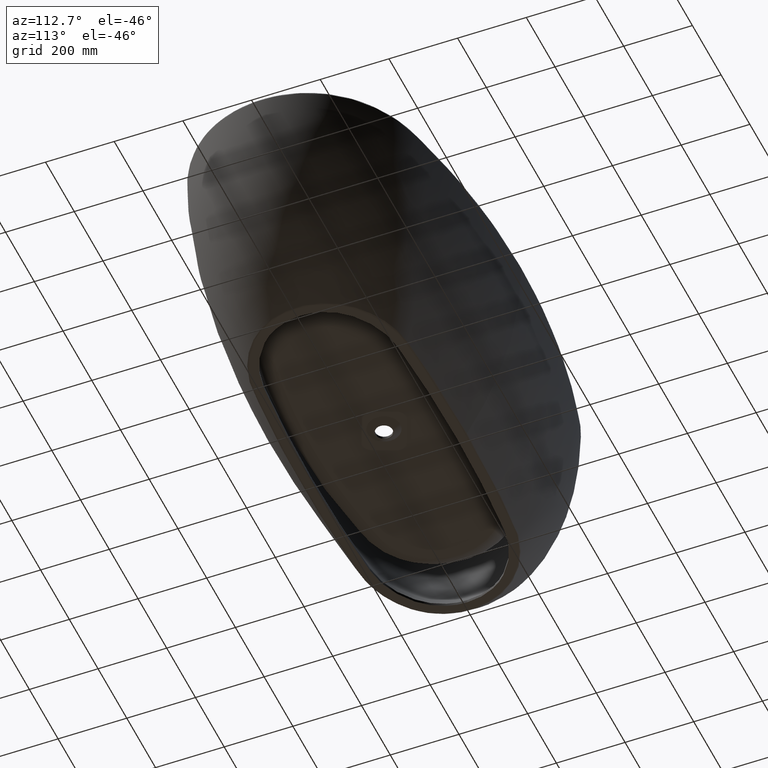
[diagram: clean part render]
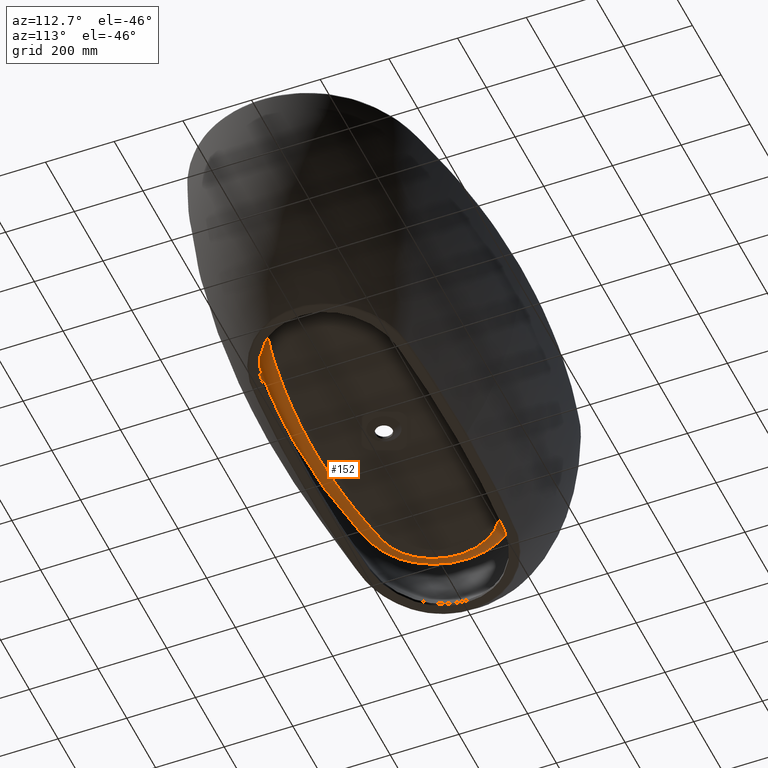
[diagram: same view with one face highlighted and labeled with its STEP entity id]
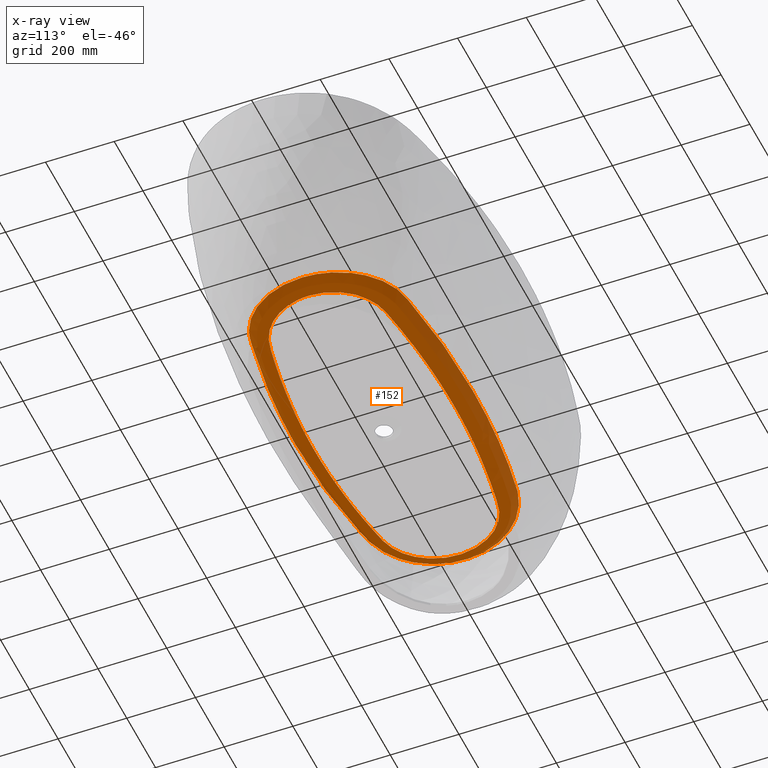
[diagram: x-ray of the same camera — body ghosted, the highlighted face saturated]
A machine part, auxiliary view. The second image highlights one B-rep face of the part: STEP entity #152.
The next image is the same camera in x-ray: the body ghosted, the highlighted face saturated — about 0% of this face is hidden behind the body in this view.
In plain terms, the highlighted face is a freeform B-spline surface patch.
Its self-contained STEP definition (entity closure, byte-faithful):
#116=(
BOUNDED_SURFACE()
B_SPLINE_SURFACE(3,2,((#5090,#5091,#5092),(#5093,#5094,#5095),(#5096,#5097,
#5098),(#5099,#5100,#5101),(#5102,#5103,#5104),(#5105,#5106,#5107),(#5108,
#5109,#5110),(#5111,#5112,#5113),(#5114,#5115,#5116),(#5117,#5118,#5119),
(#5120,#5121,#5122),(#5123,#5124,#5125),(#5126,#5127,#5128),(#5129,#5130,
#5131),(#5132,#5133,#5134),(#5135,#5136,#5137),(#5138,#5139,#5140),(#5141,
#5142,#5143),(#5144,#5145,#5146),(#5147,#5148,#5149),(#5150,#5151,#5152),
(#5153,#5154,#5155),(#5156,#5157,#5158),(#5159,#5160,#5161),(#5162,#5163,
#5164),(#5165,#5166,#5167),(#5168,#5169,#5170),(#5171,#5172,#5173),(#5174,
#5175,#5176),(#5177,#5178,#5179),(#5180,#5181,#5182),(#5183,#5184,#5185),
(#5186,#5187,#5188),(#5189,#5190,#5191),(#5192,#5193,#5194),(#5195,#5196,
#5197),(#5198,#5199,#5200),(#5201,#5202,#5203),(#5204,#5205,#5206),(#5207,
#5208,#5209),(#5210,#5211,#5212),(#5213,#5214,#5215),(#5216,#5217,#5218),
(#5219,#5220,#5221),(#5222,#5223,#5224),(#5225,#5226,#5227),(#5228,#5229,
#5230),(#5231,#5232,#5233),(#5234,#5235,#5236),(#5237,#5238,#5239),(#5240,
#5241,#5242),(#5243,#5244,#5245),(#5246,#5247,#5248),(#5249,#5250,#5251),
(#5252,#5253,#5254),(#5255,#5256,#5257),(#5258,#5259,#5260),(#5261,#5262,
#5263),(#5264,#5265,#5266),(#5267,#5268,#5269),(#5270,#5271,#5272),(#5273,
#5274,#5275),(#5276,#5277,#5278),(#5279,#5280,#5281),(#5282,#5283,#5284),
(#5285,#5286,#5287),(#5288,#5289,#5290),(#5291,#5292,#5293),(#5294,#5295,
#5296),(#5297,#5298,#5299),(#5300,#5301,#5302),(#5303,#5304,#5305),(#5306,
#5307,#5308),(#5309,#5310,#5311),(#5312,#5313,#5314),(#5315,#5316,#5317),
(#5318,#5319,#5320),(#5321,#5322,#5323),(#5324,#5325,#5326),(#5327,#5328,
#5329),(#5330,#5331,#5332),(#5333,#5334,#5335),(#5336,#5337,#5338),(#5339,
#5340,#5341),(#5342,#5343,#5344),(#5345,#5346,#5347),(#5348,#5349,#5350),
(#5351,#5352,#5353),(#5354,#5355,#5356),(#5357,#5358,#5359),(#5360,#5361,
#5362),(#5363,#5364,#5365),(#5366,#5367,#5368),(#5369,#5370,#5371),(#5372,
#5373,#5374),(#5375,#5376,#5377),(#5378,#5379,#5380),(#5381,#5382,#5383),
(#5384,#5385,#5386),(#5387,#5388,#5389),(#5390,#5391,#5392),(#5393,#5394,
#5395),(#5396,#5397,#5398),(#5399,#5400,#5401),(#5402,#5403,#5404),(#5405,
#5406,#5407),(#5408,#5409,#5410),(#5411,#5412,#5413),(#5414,#5415,#5416),
(#5417,#5418,#5419),(#5420,#5421,#5422),(#5423,#5424,#5425),(#5426,#5427,
#5428),(#5429,#5430,#5431),(#5432,#5433,#5434),(#5435,#5436,#5437),(#5438,
#5439,#5440),(#5441,#5442,#5443),(#5444,#5445,#5446),(#5447,#5448,#5449),
(#5450,#5451,#5452),(#5453,#5454,#5455),(#5456,#5457,#5458),(#5459,#5460,
#5461),(#5462,#5463,#5464),(#5465,#5466,#5467),(#5468,#5469,#5470),(#5471,
#5472,#5473),(#5474,#5475,#5476),(#5477,#5478,#5479),(#5480,#5481,#5482),
(#5483,#5484,#5485),(#5486,#5487,#5488),(#5489,#5490,#5491),(#5492,#5493,
#5494),(#5495,#5496,#5497),(#5498,#5499,#5500),(#5501,#5502,#5503),(#5504,
#5505,#5506),(#5507,#5508,#5509),(#5510,#5511,#5512),(#5513,#5514,#5515),
(#5516,#5517,#5518),(#5519,#5520,#5521),(#5522,#5523,#5524),(#5525,#5526,
#5527),(#5528,#5529,#5530),(#5531,#5532,#5533),(#5534,#5535,#5536),(#5537,
#5538,#5539),(#5540,#5541,#5542),(#5543,#5544,#5545),(#5546,#5547,#5548),
(#5549,#5550,#5551),(#5552,#5553,#5554),(#5555,#5556,#5557),(#5558,#5559,
#5560),(#5561,#5562,#5563),(#5564,#5565,#5566),(#5567,#5568,#5569),(#5570,
#5571,#5572),(#5573,#5574,#5575),(#5576,#5577,#5578),(#5579,#5580,#5581),
(#5582,#5583,#5584),(#5585,#5586,#5587),(#5588,#5589,#5590),(#5591,#5592,
#5593),(#5594,#5595,#5596),(#5597,#5598,#5599),(#5600,#5601,#5602),(#5603,
#5604,#5605),(#5606,#5607,#5608),(#5609,#5610,#5611),(#5612,#5613,#5614),
(#5615,#5616,#5617),(#5618,#5619,#5620),(#5621,#5622,#5623),(#5624,#5625,
#5626),(#5627,#5628,#5629),(#5630,#5631,#5632),(#5633,#5634,#5635),(#5636,
#5637,#5638),(#5639,#5640,#5641),(#5642,#5643,#5644),(#5645,#5646,#5647),
(#5648,#5649,#5650),(#5651,#5652,#5653),(#5654,#5655,#5656),(#5657,#5658,
#5659),(#5660,#5661,#5662),(#5663,#5664,#5665),(#5666,#5667,#5668),(#5669,
#5670,#5671),(#5672,#5673,#5674),(#5675,#5676,#5677),(#5678,#5679,#5680),
(#5681,#5682,#5683),(#5684,#5685,#5686),(#5687,#5688,#5689),(#5690,#5691,
#5692),(#5693,#5694,#5695),(#5696,#5697,#5698),(#5699,#5700,#5701),(#5702,
#5703,#5704),(#5705,#5706,#5707),(#5708,#5709,#5710),(#5711,#5712,#5713),
(#5714,#5715,#5716),(#5717,#5718,#5719),(#5720,#5721,#5722),(#5723,#5724,
#5725),(#5726,#5727,#5728),(#5729,#5730,#5731),(#5732,#5733,#5734),(#5735,
#5736,#5737),(#5738,#5739,#5740),(#5741,#5742,#5743),(#5744,#5745,#5746),
(#5747,#5748,#5749)),.UNSPECIFIED.,.T.,.F.,.F.)
B_SPLINE_SURFACE_WITH_KNOTS((1,3,2,2,2,2,2,2,2,2,2,2,2,2,2,2,2,2,2,2,2,
2,2,2,2,2,2,2,2,2,2,2,2,2,2,2,2,2,2,2,2,2,2,2,2,2,2,2,2,2,2,2,2,2,2,2,2,
2,2,2,2,2,2,2,2,2,2,2,2,2,2,2,2,2,2,2,2,2,2,2,2,2,2,2,2,2,2,2,2,2,2,2,2,
2,2,2,2,2,2,2,2,2,2,2,2,2,2,2,2,2,3,1),(3,3),(-0.001953125,0.,0.001953125,
0.00390624999999999,0.0078125,0.015625,0.03125,0.0625,0.09375,0.125,0.15625,
0.1875,0.21875,0.234375,0.23828125,0.2392578125,0.23974609375,0.240234375,
0.2412109375,0.2421875,0.25,0.2578125,0.26171875,0.265625,0.2734375,0.27734375,
0.28125,0.28515625,0.2890625,0.296875,0.3046875,0.30859375,0.3125,0.328125,
0.3359375,0.34375,0.3515625,0.35546875,0.359375,0.375,0.37890625,0.3828125,
0.38671875,0.390625,0.39453125,0.3984375,0.40625,0.421875,0.42578125,0.4267578125,
0.427734375,0.42822265625,0.4287109375,0.4296875,0.4375,0.5,0.5625,0.59375,
0.625,0.65625,0.6875,0.71875,0.734375,0.73828125,0.7392578125,0.73974609375,
0.740234375,0.74072265625,0.7412109375,0.7421875,0.75,0.7578125,0.76171875,
0.765625,0.7734375,0.78125,0.78515625,0.7890625,0.796875,0.8046875,0.80859375,
0.8125,0.828125,0.8359375,0.84375,0.8515625,0.85546875,0.859375,0.875,0.87890625,
0.880859375,0.8828125,0.890625,0.8984375,0.90234375,0.90625,0.921875,0.923828125,
0.9248046875,0.92578125,0.92626953125,0.9267578125,0.927734375,0.9296875,
0.9375,0.96875,0.984375,0.9921875,0.99609375,0.998046875,1.,1.001953125),
(0.,1.),.UNSPECIFIED.)
GEOMETRIC_REPRESENTATION_ITEM()
RATIONAL_B_SPLINE_SURFACE(((1.,0.817398733495515,1.),(1.,0.817425497422163,
1.),(1.,0.817451698408655,1.),(1.,0.817504634445303,1.),(1.,0.817531091827981,
1.),(1.,0.817610420705169,1.),(1.,0.817663249783497,1.),(1.,0.817821446395037,
1.),(1.,0.817926547494636,1.),(1.,0.818239173811385,1.),(1.,0.818444354753974,
1.),(1.,0.819028989124959,1.),(1.,0.819379227714457,1.),(1.,0.819795981629911,
1.),(1.,0.819848194562417,1.),(1.,0.819594676400247,1.),(1.,0.819299459095582,
1.),(1.,0.818576988365659,1.),(1.,0.818156251608521,1.),(1.,0.817312942804892,
1.),(1.,0.816887876046972,1.),(1.,0.816038922170727,1.),(1.,0.815614159906355,
1.),(1.,0.814959832216193,1.),(1.,0.814739214647484,1.),(1.,0.814460621830828,
1.),(1.,0.814415743244993,1.),(1.,0.814327321290505,1.),(1.,0.814287657381835,
1.),(1.,0.814318808291966,1.),(1.,0.814338960376448,1.),(1.,0.814530543968992,
1.),(1.,0.814799911010853,1.),(1.,0.815616306190364,1.),(1.,0.816037119882842,
1.),(1.,0.816987816710422,1.),(1.,0.817464948112866,1.),(1.,0.821729419604392,
1.),(1.,0.82541001154912,1.),(1.,0.832579475635604,1.),(1.,0.836058099675868,
1.),(1.,0.84112371433957,1.),(1.,0.842789340161746,1.),(1.,0.846025807732792,
1.),(1.,0.847604223099373,1.),(1.,0.852209142312236,1.),(1.,0.855107653578961,
1.),(1.,0.859233328027925,1.),(1.,0.860547086749585,1.),(1.,0.86321961981121,
1.),(1.,0.864483305635907,1.),(1.,0.866919615383577,1.),(1.,0.868112780384426,
1.),(1.,0.870313045805838,1.),(1.,0.871237663587028,1.),(1.,0.873966111922974,
1.),(1.,0.875594880716777,1.),(1.,0.878507682054761,1.),(1.,0.879794066553665,
1.),(1.,0.881491175309704,1.),(1.,0.88201963038751,1.),(1.,0.88299073077616,
1.),(1.,0.883434325505635,1.),(1.,0.885457796880226,1.),(1.,0.886453691935026,
1.),(1.,0.887104442889363,1.),(1.,0.887175985818939,1.),(1.,0.887026834499044,
1.),(1.,0.886807544174812,1.),(1.,0.886083459801414,1.),(1.,0.88557764090369,
1.),(1.,0.884591586120596,1.),(1.,0.884224613508189,1.),(1.,0.883409478835474,
1.),(1.,0.882960635400132,1.),(1.,0.880524054363783,1.),(1.,0.877981938134789,
1.),(1.,0.873905167801074,1.),(1.,0.873043339384474,1.),(1.,0.871225928427622,
1.),(1.,0.870301831561848,1.),(1.,0.868099045213891,1.),(1.,0.866906219964951,
1.),(1.,0.864468944855064,1.),(1.,0.863202911303865,1.),(1.,0.86052434570168,
1.),(1.,0.859208871321113,1.),(1.,0.856450952526593,1.),(1.,0.855032146164437,
1.),(1.,0.850660125514353,1.),(1.,0.847576861013909,1.),(1.,0.837811388479301,
1.),(1.,0.830846737451235,1.),(1.,0.821566276111798,1.),(1.,0.819679037079311,
1.),(1.,0.817284992165407,1.),(1.,0.816801820107448,1.),(1.,0.815844577678806,
1.),(1.,0.815415949905879,1.),(1.,0.814533271731285,1.),(1.,0.814422667669249,
1.),(1.,0.814315529365743,1.),(1.,0.814300531049404,1.),(1.,0.814321927781039,
1.),(1.,0.814335400716995,1.),(1.,0.814490942680807,1.),(1.,0.814581631844652,
1.),(1.,0.815589672606869,1.),(1.,0.816436922580819,1.),(1.,0.818145692247589,
1.),(1.,0.819086282314415,1.),(1.,0.819774070761704,1.),(1.,0.819850476489292,
1.),(1.,0.819631131349136,1.),(1.,0.819344843119042,1.),(1.,0.818627023022132,
1.),(1.,0.818203107386754,1.),(1.,0.817351976447421,1.),(1.,0.81692224567325,
1.),(1.,0.816064501557095,1.),(1.,0.815635548918436,1.),(1.,0.814974863983151,
1.),(1.,0.814752095451948,1.),(1.,0.814470606183464,1.),(1.,0.814421983452438,
1.),(1.,0.81433923849187,1.),(1.,0.814315507676756,1.),(1.,0.814303245031496,
1.),(1.,0.814312761049076,1.),(1.,0.814405729220575,1.),(1.,0.814490388125746,
1.),(1.,0.815012253834699,1.),(1.,0.815308296021764,1.),(1.,0.815780143344181,
1.),(1.,0.816017609814774,1.),(1.,0.81673471245696,1.),(1.,0.817218497774602,
1.),(1.,0.82153270881921,1.),(1.,0.82525509345414,1.),(1.,0.832503238952173,
1.),(1.,0.836019622482718,1.),(1.,0.841138153103544,1.),(1.,0.842820853913907,
1.),(1.,0.846089393631228,1.),(1.,0.847683120262488,1.),(1.,0.852330596940753,
1.),(1.,0.855254559715643,1.),(1.,0.860800251264257,1.),(1.,0.86347844122214,
1.),(1.,0.867151608413294,1.),(1.,0.868362836904896,1.),(1.,0.870535194580751,
1.),(1.,0.871461059693838,1.),(1.,0.874194104857559,1.),(1.,0.875822394522671,
1.),(1.,0.878730339420656,1.),(1.,0.880011075890959,1.),(1.,0.881696958293935,
1.),(1.,0.882220242452722,1.),(1.,0.883178659745,1.),(1.,0.883615716809855,
1.),(1.,0.885602226469294,1.),(1.,0.8865608847377,1.),(1.,0.887136465007882,
1.),(1.,0.887179249091028,1.),(1.,0.886967650139336,1.),(1.,0.886714724311544,
1.),(1.,0.885916475757624,1.),(1.,0.885369990462103,1.),(1.,0.884315384926803,
1.),(1.,0.883923830766892,1.),(1.,0.883058025988465,1.),(1.,0.882582740081412,
1.),(1.,0.880016510116121,1.),(1.,0.877357925948465,1.),(1.,0.873089289936338,
1.),(1.,0.872191913079388,1.),(1.,0.870763164648833,1.),(1.,0.870280227819072,
1.),(1.,0.869227263225585,1.),(1.,0.868649211178326,1.),(1.,0.86572699537111,
1.),(1.,0.863150946631362,1.),(1.,0.857761886712705,1.),(1.,0.85492580014259,
1.),(1.,0.850415967992113,1.),(1.,0.848868393382432,1.),(1.,0.84568289287352,
1.),(1.,0.844043655144141,1.),(1.,0.83571039666251,1.),(1.,0.828579787599626,
1.),(1.,0.8200176097073,1.),(1.,0.81905930423764,1.),(1.,0.817610493369731,
1.),(1.,0.817125142268795,1.),(1.,0.816152619801539,1.),(1.,0.815715648992772,
1.),(1.,0.814911940240283,1.),(1.,0.814593435916489,1.),(1.,0.814345566503183,
1.),(1.,0.814322913780909,1.),(1.,0.814282646693089,1.),(1.,0.814326860277314,
1.),(1.,0.81437600043745,1.),(1.,0.814405204636513,1.),(1.,0.814547157651335,
1.),(1.,0.814661212046204,1.),(1.,0.815225187601545,1.),(1.,0.815664734049519,
1.),(1.,0.816316524791717,1.),(1.,0.816533077793077,1.),(1.,0.816857725614279,
1.),(1.,0.816965913152912,1.),(1.,0.817128227526244,1.),(1.,0.817182336014314,
1.),(1.,0.817263494512769,1.),(1.,0.817290546491131,1.),(1.,0.817344645181527,
1.),(1.,0.817371969568866,1.),(1.,0.817398733495515,1.)))
REPRESENTATION_ITEM('')
SURFACE()
);
#152=ADVANCED_FACE('',(#192,#193),#116,.T.);
#192=FACE_BOUND('',#228,.T.);
#193=FACE_BOUND('',#229,.T.);
#228=EDGE_LOOP('',(#313,#314,#315));
#229=EDGE_LOOP('',(#316,#317,#318));
#313=ORIENTED_EDGE('',*,*,#515,.T.);
#314=ORIENTED_EDGE('',*,*,#514,.T.);
#315=ORIENTED_EDGE('',*,*,#516,.T.);
#316=ORIENTED_EDGE('',*,*,#518,.T.);
#317=ORIENTED_EDGE('',*,*,#517,.T.);
#318=ORIENTED_EDGE('',*,*,#519,.T.);
#448=VERTEX_POINT('',#4115);
#449=VERTEX_POINT('',#4116);
#450=VERTEX_POINT('',#4205);
#451=VERTEX_POINT('',#4331);
#452=VERTEX_POINT('',#4332);
#453=VERTEX_POINT('',#4339);
#514=EDGE_CURVE('',#448,#449,#589,.T.);
#515=EDGE_CURVE('',#450,#448,#590,.T.);
#516=EDGE_CURVE('',#449,#450,#591,.T.);
#517=EDGE_CURVE('',#451,#452,#592,.T.);
#518=EDGE_CURVE('',#453,#451,#593,.T.);
#519=EDGE_CURVE('',#452,#453,#594,.T.);
#589=B_SPLINE_CURVE_WITH_KNOTS('',3,(#4109,#4110,#4111,#4112,#4113,#4114),
 .UNSPECIFIED.,.F.,.F.,(4,2,4),(0.,0.5,1.),.UNSPECIFIED.);
#590=B_SPLINE_CURVE_WITH_KNOTS('',3,(#4117,#4118,#4119,#4120,#4121,#4122,
#4123,#4124,#4125,#4126,#4127,#4128,#4129,#4130,#4131,#4132,#4133,#4134,
#4135,#4136,#4137,#4138,#4139,#4140,#4141,#4142,#4143,#4144,#4145,#4146,
#4147,#4148,#4149,#4150,#4151,#4152,#4153,#4154,#4155,#4156,#4157,#4158,
#4159,#4160,#4161,#4162,#4163,#4164,#4165,#4166,#4167,#4168,#4169,#4170,
#4171,#4172,#4173,#4174,#4175,#4176,#4177,#4178,#4179,#4180,#4181,#4182,
#4183,#4184,#4185,#4186,#4187,#4188,#4189,#4190,#4191,#4192,#4193,#4194,
#4195,#4196,#4197,#4198,#4199,#4200,#4201,#4202,#4203,#4204),
 .UNSPECIFIED.,.F.,.F.,(4,2,2,2,2,2,2,2,2,2,2,2,2,2,2,2,2,2,2,2,2,2,2,2,
2,2,2,2,2,2,2,2,2,2,2,2,2,2,2,2,2,2,2,4),(0.,0.015625,0.03125,0.0390625,
0.046875,0.0624999999999999,0.0703124999999998,0.0781249999999998,0.0937499999999997,
0.1015625,0.109375,0.1171875,0.125,0.249999999999999,0.312499999999999,
0.374999999999999,0.499999999999999,0.531249999999999,0.539062499999999,
0.546874999999999,0.562499999999999,0.578124999999999,0.593749999999999,
0.601562499999999,0.609375,0.625,0.640625,0.65625,0.671875,0.6875,0.703125,
0.718750000000001,0.726562500000001,0.734375000000001,0.750000000000001,
0.757812500000001,0.765625000000001,0.781250000000001,0.789062500000001,
0.796875000000001,0.812500000000001,0.875000000000001,0.9375,1.),
 .UNSPECIFIED.);
#591=B_SPLINE_CURVE_WITH_KNOTS('',3,(#4206,#4207,#4208,#4209,#4210,#4211,
#4212,#4213,#4214,#4215,#4216,#4217,#4218,#4219,#4220,#4221,#4222,#4223,
#4224,#4225,#4226,#4227),.UNSPECIFIED.,.F.,.F.,(4,2,2,2,2,2,2,2,2,2,4),
(0.,0.0625000000000001,0.125,0.25,0.3125,0.375,0.500000000000001,0.625000000000001,
0.75,0.875,1.),.UNSPECIFIED.);
#592=B_SPLINE_CURVE_WITH_KNOTS('',3,(#4229,#4230,#4231,#4232,#4233,#4234,
#4235,#4236,#4237,#4238,#4239,#4240,#4241,#4242,#4243,#4244,#4245,#4246,
#4247,#4248,#4249,#4250,#4251,#4252,#4253,#4254,#4255,#4256,#4257,#4258,
#4259,#4260,#4261,#4262,#4263,#4264,#4265,#4266,#4267,#4268,#4269,#4270,
#4271,#4272,#4273,#4274,#4275,#4276,#4277,#4278,#4279,#4280,#4281,#4282,
#4283,#4284,#4285,#4286,#4287,#4288,#4289,#4290,#4291,#4292,#4293,#4294,
#4295,#4296,#4297,#4298,#4299,#4300,#4301,#4302,#4303,#4304,#4305,#4306,
#4307,#4308,#4309,#4310,#4311,#4312,#4313,#4314,#4315,#4316,#4317,#4318,
#4319,#4320,#4321,#4322,#4323,#4324,#4325,#4326,#4327,#4328,#4329,#4330),
 .UNSPECIFIED.,.F.,.F.,(4,2,2,2,2,2,2,2,2,2,2,2,2,2,2,2,2,2,2,2,2,2,2,2,
2,2,2,2,2,2,2,2,2,2,2,2,2,2,2,2,2,2,2,2,2,2,2,2,2,2,4),(0.,0.0624999999999991,
0.124999999999998,0.187499999999997,0.189453124999997,0.191406249999997,
0.195312499999997,0.203124999999997,0.218749999999998,0.226562499999998,
0.234374999999998,0.249999999999998,0.265624999999998,0.281249999999998,
0.296874999999999,0.312499999999999,0.328124999999999,0.343749999999999,
0.359374999999999,0.375,0.40625,0.4140625,0.421875,0.4375,0.453125000000001,
0.468750000000001,0.476562500000001,0.478515625000001,0.480468750000001,
0.484375000000001,0.500000000000001,0.625000000000001,0.687500000000002,
0.750000000000002,0.812500000000002,0.843750000000002,0.851562500000002,
0.855468750000002,0.857421875000002,0.859375000000002,0.875000000000002,
0.882812500000002,0.890625000000001,0.906250000000001,0.921875000000001,
0.929687500000001,0.9375,0.953125,0.96875,0.984375,1.),.UNSPECIFIED.);
#593=B_SPLINE_CURVE_WITH_KNOTS('',3,(#4333,#4334,#4335,#4336,#4337,#4338),
 .UNSPECIFIED.,.F.,.F.,(4,2,4),(0.,0.5,1.),.UNSPECIFIED.);
#594=B_SPLINE_CURVE_WITH_KNOTS('',3,(#4340,#4341,#4342,#4343,#4344,#4345,
#4346,#4347,#4348,#4349,#4350,#4351,#4352,#4353,#4354,#4355,#4356,#4357,
#4358,#4359,#4360,#4361,#4362,#4363,#4364,#4365),.UNSPECIFIED.,.F.,.F.,
(4,2,2,2,2,2,2,2,2,2,2,2,4),(0.,0.125,0.25,0.375,0.5,0.625,0.6875,0.75,
0.875,0.9375,0.953124999999999,0.968749999999999,1.),.UNSPECIFIED.);
#4109=CARTESIAN_POINT('',(-4.80329113461448E-8,-205.325635025215,-459.242322128926));
#4110=CARTESIAN_POINT('',(63.081505439682,-205.325634870625,-459.242322133955));
#4111=CARTESIAN_POINT('',(126.008240467635,-202.384583785483,-458.412506070849));
#4112=CARTESIAN_POINT('',(251.583704126092,-191.0349867488,-456.073393474606));
#4113=CARTESIAN_POINT('',(314.065722293619,-182.625777757895,-454.603613219494));
#4114=CARTESIAN_POINT('',(376.129489571932,-171.476674082967,-453.063906304924));
#4115=CARTESIAN_POINT('',(-4.80329113461448E-8,-205.325635025215,-459.242322128926));
#4116=CARTESIAN_POINT('',(376.129489571932,-171.476674082967,-453.063906304924));
#4117=CARTESIAN_POINT('',(524.236906157653,3.0531769051355E-6,-449.771585508481));
#4118=CARTESIAN_POINT('',(524.236908639576,9.93527596799686,-449.771585433057));
#4119=CARTESIAN_POINT('',(523.412411126641,19.8195530348579,-449.787626433726));
#4120=CARTESIAN_POINT('',(520.200679447475,39.1705122413348,-449.850422308057));
#4121=CARTESIAN_POINT('',(517.814682909968,48.6844174581184,-449.89714754448));
#4122=CARTESIAN_POINT('',(513.035544086514,62.706708260822,-449.991517780933));
#4123=CARTESIAN_POINT('',(511.233414251525,67.354373824704,-450.027205932118));
#4124=CARTESIAN_POINT('',(507.283984734708,76.4045053113042,-450.105779131639));
#4125=CARTESIAN_POINT('',(505.132500236134,80.8243548417206,-450.148743002215));
#4126=CARTESIAN_POINT('',(498.156024634486,93.7731835477998,-450.28881524841));
#4127=CARTESIAN_POINT('',(492.813590615192,101.994168894384,-450.396971811308));
#4128=CARTESIAN_POINT('',(483.729323827159,113.688371991803,-450.583725099407));
#4129=CARTESIAN_POINT('',(480.493575914849,117.48819462458,-450.650823080377));
#4130=CARTESIAN_POINT('',(473.744421764096,124.690949638705,-450.79247591131));
#4131=CARTESIAN_POINT('',(470.223156426654,128.110749499365,-450.867165395334));
#4132=CARTESIAN_POINT('',(459.240509500099,137.851663511789,-451.10271627302));
#4133=CARTESIAN_POINT('',(451.36378494492,143.658635415345,-451.274929892482));
#4134=CARTESIAN_POINT('',(438.687502595618,151.302968440378,-451.559512884814));
#4135=CARTESIAN_POINT('',(434.298279956891,153.679676461364,-451.659236389748));
#4136=CARTESIAN_POINT('',(425.419145420068,157.967063833459,-451.863744265944));
#4137=CARTESIAN_POINT('',(420.91035129879,159.891599069491,-451.96893892395));
#4138=CARTESIAN_POINT('',(411.75735675599,163.311961915796,-452.185581757721));
#4139=CARTESIAN_POINT('',(407.113217335799,164.807982805885,-452.297025219023));
#4140=CARTESIAN_POINT('',(397.68983859478,167.372249052298,-452.52665027134));
#4141=CARTESIAN_POINT('',(392.898330090261,168.40163169506,-452.645627642069));
#4142=CARTESIAN_POINT('',(310.727572303899,183.637021562274,-454.701362086604));
#4143=CARTESIAN_POINT('',(232.545240335063,193.749710364156,-456.565016092973));
#4144=CARTESIAN_POINT('',(114.886033162432,202.469607920961,-458.495653477906));
#4145=CARTESIAN_POINT('',(75.611302096563,204.301603854495,-458.974280768993));
#4146=CARTESIAN_POINT('',(-3.05671019044231,205.702704603398,-459.340401017769));
#4147=CARTESIAN_POINT('',(-42.4752128248378,205.255053001542,-459.213332396385));
#4148=CARTESIAN_POINT('',(-160.390562387675,200.556123383181,-458.038123359444));
#4149=CARTESIAN_POINT('',(-238.532003384567,193.071962328074,-456.342522827586));
#4150=CARTESIAN_POINT('',(-335.657856148394,178.43907050458,-454.056651353927));
#4151=CARTESIAN_POINT('',(-355.055072433415,175.24560036494,-453.58610701729));
#4152=CARTESIAN_POINT('',(-379.266363941496,170.916490696776,-452.986208338051));
#4153=CARTESIAN_POINT('',(-384.106243403092,170.03462271537,-452.865640721006));
#4154=CARTESIAN_POINT('',(-393.778873530181,168.234950432287,-452.623533596917));
#4155=CARTESIAN_POINT('',(-398.556346767461,167.161760840781,-452.505348362929));
#4156=CARTESIAN_POINT('',(-412.623422052619,163.250676303394,-452.163182212832));
#4157=CARTESIAN_POINT('',(-421.69109911163,159.810082440797,-451.949382436497));
#4158=CARTESIAN_POINT('',(-439.206164044969,151.263964449743,-451.546439681989));
#4159=CARTESIAN_POINT('',(-447.670549877486,146.120989843735,-451.357041714641));
#4160=CARTESIAN_POINT('',(-463.291943032483,134.563438587851,-451.014765014923));
#4161=CARTESIAN_POINT('',(-470.547442360683,128.116761903383,-450.859542871219));
#4162=CARTESIAN_POINT('',(-480.564702099446,117.405020732328,-450.64934748755));
#4163=CARTESIAN_POINT('',(-483.765023941486,113.642574858256,-450.582990974481));
#4164=CARTESIAN_POINT('',(-489.754117908983,105.932476599106,-450.459868301442));
#4165=CARTESIAN_POINT('',(-492.570892493425,101.975628047728,-450.402379645008));
#4166=CARTESIAN_POINT('',(-500.505234832809,89.8096161773362,-450.241311156218));
#4167=CARTESIAN_POINT('',(-505.10941551416,81.3064722798462,-450.149067889594));
#4168=CARTESIAN_POINT('',(-512.943102127995,63.5130256697828,-449.993167282711));
#4169=CARTESIAN_POINT('',(-516.177586124398,54.1538395114101,-449.929427844353));
#4170=CARTESIAN_POINT('',(-521.011492402145,35.3084280062016,-449.834500053744));
#4171=CARTESIAN_POINT('',(-522.652215865234,25.7541244313514,-449.802488201624));
#4172=CARTESIAN_POINT('',(-524.386528242503,6.38322638989571,-449.768656861925));
#4173=CARTESIAN_POINT('',(-524.468056004403,-3.52210012210558,-449.767072637972));
#4174=CARTESIAN_POINT('',(-523.026800315092,-23.0326140338324,-449.795176381387));
#4175=CARTESIAN_POINT('',(-521.524492665203,-32.6259762416268,-449.824471429576));
#4176=CARTESIAN_POINT('',(-516.990904071601,-51.4960307409093,-449.913422014494));
#4177=CARTESIAN_POINT('',(-513.93071095011,-60.8382380847538,-449.973646620109));
#4178=CARTESIAN_POINT('',(-506.32240042959,-78.8754820621221,-450.124827814101));
#4179=CARTESIAN_POINT('',(-501.825856523485,-87.4819839406661,-450.214754227378));
#4180=CARTESIAN_POINT('',(-494.062333454544,-99.785371428892,-450.372023307593));
#4181=CARTESIAN_POINT('',(-491.303668906955,-103.784821210492,-450.428203618758));
#4182=CARTESIAN_POINT('',(-485.437945958987,-111.576342925599,-450.548491239839));
#4183=CARTESIAN_POINT('',(-482.310086631626,-115.386512447353,-450.61306063149));
#4184=CARTESIAN_POINT('',(-472.455981204004,-126.282915690825,-450.819036851275));
#4185=CARTESIAN_POINT('',(-465.313855709532,-132.838247302283,-450.971254924925));
#4186=CARTESIAN_POINT('',(-453.789211722175,-141.666738794781,-451.22272711397));
#4187=CARTESIAN_POINT('',(-449.810876936957,-144.440239936508,-451.310459064681));
#4188=CARTESIAN_POINT('',(-441.573475007142,-149.639709505052,-451.49439277645));
#4189=CARTESIAN_POINT('',(-437.289328403031,-152.078087192434,-451.5911683355));
#4190=CARTESIAN_POINT('',(-424.204280837325,-158.745991525495,-451.890722838424));
#4191=CARTESIAN_POINT('',(-415.208493202477,-162.328842218836,-452.101777077905));
#4192=CARTESIAN_POINT('',(-401.320890339028,-166.455846580492,-452.437650318645));
#4193=CARTESIAN_POINT('',(-396.625483860264,-167.621888487541,-452.552849692673));
#4194=CARTESIAN_POINT('',(-387.100741127613,-169.52987407827,-452.790292551898));
#4195=CARTESIAN_POINT('',(-382.300628907425,-170.364382497192,-452.910674218558));
#4196=CARTESIAN_POINT('',(-367.928042779752,-172.955992669451,-453.267591591545));
#4197=CARTESIAN_POINT('',(-358.335110116522,-174.618326033243,-453.503361328417));
#4198=CARTESIAN_POINT('',(-310.329781537779,-182.602091639458,-454.668836648495));
#4199=CARTESIAN_POINT('',(-271.779910813165,-187.944231505372,-455.562079524146));
#4200=CARTESIAN_POINT('',(-194.388165856529,-196.549040801324,-457.172516323177));
#4201=CARTESIAN_POINT('',(-155.565225719657,-199.810295718322,-457.890830992756));
#4202=CARTESIAN_POINT('',(-77.8674257269089,-204.19989380868,-458.932315489101));
#4203=CARTESIAN_POINT('',(-38.9632906142455,-205.3256351207,-459.24232212582));
#4204=CARTESIAN_POINT('',(-4.80328647883876E-8,-205.325635025215,-459.242322128926));
#4205=CARTESIAN_POINT('',(524.236906157653,3.0531769051355E-6,-449.771585508481));
#4206=CARTESIAN_POINT('',(376.129489571932,-171.476674082967,-453.063906304924));
#4207=CARTESIAN_POINT('',(381.268001314286,-170.553594439841,-452.936427706585));
#4208=CARTESIAN_POINT('',(386.417822110252,-169.655137478225,-452.807411838995));
#4209=CARTESIAN_POINT('',(396.646328595523,-167.62853270839,-452.55224117153));
#4210=CARTESIAN_POINT('',(401.670591100344,-166.373633217022,-452.429037867131));
#4211=CARTESIAN_POINT('',(416.480418653145,-161.903024935153,-452.071355921287));
#4212=CARTESIAN_POINT('',(426.006240602471,-157.990042158513,-451.848655733635));
#4213=CARTESIAN_POINT('',(439.766059324015,-150.700936232245,-451.535047679331));
#4214=CARTESIAN_POINT('',(444.27075559962,-148.025139536873,-451.433805754591));
#4215=CARTESIAN_POINT('',(452.907221263713,-142.309968784704,-451.242043118867));
#4216=CARTESIAN_POINT('',(457.06463087139,-139.258909382083,-451.150927767536));
#4217=CARTESIAN_POINT('',(469.064797036789,-129.537848896073,-450.890806443079));
#4218=CARTESIAN_POINT('',(476.469291667304,-122.274400734449,-450.734266382883));
#4219=CARTESIAN_POINT('',(489.82443641391,-106.277616611028,-450.457652357798));
#4220=CARTESIAN_POINT('',(495.652022901454,-97.7924820266595,-450.339457603825));
#4221=CARTESIAN_POINT('',(505.815602293279,-79.9680965336399,-450.13478464904));
#4222=CARTESIAN_POINT('',(510.132730717472,-70.6180407136413,-450.048943610847));
#4223=CARTESIAN_POINT('',(517.178021328173,-51.008071539127,-449.909638958016));
#4224=CARTESIAN_POINT('',(519.813570076711,-40.9897400389455,-449.858002243471));
#4225=CARTESIAN_POINT('',(523.337856743482,-20.7174014587893,-449.789074453883));
#4226=CARTESIAN_POINT('',(524.236903550917,-10.4349080931218,-449.771585587699));
#4227=CARTESIAN_POINT('',(524.236906157653,3.05317694895709E-6,-449.771585508481));
#4229=CARTESIAN_POINT('',(8.6994397736267E-8,-258.630149231648,-419.601424162734));
#4230=CARTESIAN_POINT('',(-44.2028225440738,-258.630149346623,-419.601424142232));
#4231=CARTESIAN_POINT('',(-88.3396590305131,-257.323658065622,-419.210744341398));
#4232=CARTESIAN_POINT('',(-176.483226073131,-252.070694929356,-417.925273776528));
#4233=CARTESIAN_POINT('',(-220.526702933477,-248.115827802297,-417.047997947336));
#4234=CARTESIAN_POINT('',(-308.213677192134,-237.559049132089,-415.081699947504));
#4235=CARTESIAN_POINT('',(-351.906222561347,-230.939353519705,-414.030384784273));
#4236=CARTESIAN_POINT('',(-396.707971623869,-222.788582627649,-412.798019185042));
#4237=CARTESIAN_POINT('',(-398.071138302803,-222.552812358981,-412.726575050216));
#4238=CARTESIAN_POINT('',(-400.750576412931,-221.983907050322,-412.855232089369));
#4239=CARTESIAN_POINT('',(-402.078837740517,-221.672635051231,-412.963517755412));
#4240=CARTESIAN_POINT('',(-406.06243561333,-220.7249820356,-413.211215061335));
#4241=CARTESIAN_POINT('',(-408.700183409674,-220.041955551138,-413.377658147266));
#4242=CARTESIAN_POINT('',(-416.561256022113,-217.843108256609,-413.872871103392));
#4243=CARTESIAN_POINT('',(-421.731992263324,-216.176759054251,-414.200733558309));
#4244=CARTESIAN_POINT('',(-437.035893318532,-210.581006999355,-415.177408789681));
#4245=CARTESIAN_POINT('',(-446.961571735295,-206.057336016297,-415.819955441711));
#4246=CARTESIAN_POINT('',(-461.419672536232,-198.038225707965,-416.764616691681));
#4247=CARTESIAN_POINT('',(-466.158923508443,-195.160380052354,-417.075429818915));
#4248=CARTESIAN_POINT('',(-475.309774413724,-189.103628162182,-417.680301406053));
#4249=CARTESIAN_POINT('',(-479.745108167924,-185.91202901407,-417.975426243441));
#4250=CARTESIAN_POINT('',(-492.642615992818,-175.861083076801,-418.836850751843));
#4251=CARTESIAN_POINT('',(-500.699847345312,-168.529930740537,-419.382018350075));
#4252=CARTESIAN_POINT('',(-515.70774019539,-152.579203821688,-420.425611163786));
#4253=CARTESIAN_POINT('',(-522.676902969397,-143.88556052667,-420.908278500028));
#4254=CARTESIAN_POINT('',(-535.183299041096,-125.84689862501,-421.664919235879));
#4255=CARTESIAN_POINT('',(-540.76523809251,-116.445769544618,-421.992290293832));
#4256=CARTESIAN_POINT('',(-550.60765993192,-96.8922540210312,-422.557362994643));
#4257=CARTESIAN_POINT('',(-554.889748158123,-86.6740484099237,-422.795862718094));
#4258=CARTESIAN_POINT('',(-561.969264051161,-65.7708891375366,-423.184568635145));
#4259=CARTESIAN_POINT('',(-564.749908451344,-55.1685399851202,-423.333982471945));
#4260=CARTESIAN_POINT('',(-568.83624261123,-33.670968524678,-423.552178014242));
#4261=CARTESIAN_POINT('',(-570.142258503108,-22.7758084971565,-423.620745665107));
#4262=CARTESIAN_POINT('',(-571.2320316898,-0.683259816747299,-423.678163235432));
#4263=CARTESIAN_POINT('',(-571.00071790778,10.426089890167,-423.666058933777));
#4264=CARTESIAN_POINT('',(-569.033555837883,32.2663491493785,-423.562179751407));
#4265=CARTESIAN_POINT('',(-567.303521670035,43.065126326655,-423.470812822568));
#4266=CARTESIAN_POINT('',(-562.349346871123,64.4197423072278,-423.204757215784));
#4267=CARTESIAN_POINT('',(-559.089863404031,75.0573383967569,-423.028067499168));
#4268=CARTESIAN_POINT('',(-547.236569538646,105.853078324206,-422.369252708621));
#4269=CARTESIAN_POINT('',(-536.657492971067,124.920565980967,-421.81149559582));
#4270=CARTESIAN_POINT('',(-520.081379657753,146.915064770205,-420.727097323678));
#4271=CARTESIAN_POINT('',(-516.576751230969,151.223908144327,-420.48123816168));
#4272=CARTESIAN_POINT('',(-509.303477813602,159.480439927119,-419.981400078963));
#4273=CARTESIAN_POINT('',(-505.526768925045,163.449402582593,-419.715263861517));
#4274=CARTESIAN_POINT('',(-493.772570581488,174.877398296848,-418.912388547142));
#4275=CARTESIAN_POINT('',(-485.383952082519,181.870558163049,-418.350371177681));
#4276=CARTESIAN_POINT('',(-467.479974918072,194.580399992363,-417.160916815408));
#4277=CARTESIAN_POINT('',(-457.928341589772,200.294173104141,-416.533836858232));
#4278=CARTESIAN_POINT('',(-438.338824535255,210.023948886766,-415.262986275955));
#4279=CARTESIAN_POINT('',(-428.225156619829,214.101471125479,-414.612554869076));
#4280=CARTESIAN_POINT('',(-412.572706054616,219.028913670144,-413.62092610022));
#4281=CARTESIAN_POINT('',(-407.275585452665,220.473954001134,-413.28143272128));
#4282=CARTESIAN_POINT('',(-400.547509318256,222.019820820462,-412.870661454296));
#4283=CARTESIAN_POINT('',(-399.19738757973,222.323615737566,-412.755362509296));
#4284=CARTESIAN_POINT('',(-396.477194228935,222.835264265539,-412.79142826996));
#4285=CARTESIAN_POINT('',(-395.115560609009,223.078619021092,-412.842081637106));
#4286=CARTESIAN_POINT('',(-391.031684134173,223.819561790842,-412.951517660091));
#4287=CARTESIAN_POINT('',(-388.308221046979,224.308958763108,-413.022366088393));
#4288=CARTESIAN_POINT('',(-374.685977412682,226.728457788522,-413.380045311195));
#4289=CARTESIAN_POINT('',(-363.778867606716,228.580166228036,-413.662253741459));
#4290=CARTESIAN_POINT('',(-265.541477754751,244.493887525727,-416.159218529296));
#4291=CARTESIAN_POINT('',(-177.676755541523,253.306484901258,-418.179807674335));
#4292=CARTESIAN_POINT('',(-45.0492608080571,258.616200204885,-419.580486863706));
#4293=CARTESIAN_POINT('',(-0.702292208014918,259.068069219109,-419.722422052161));
#4294=CARTESIAN_POINT('',(87.7892380619256,257.344044830597,-419.2419482424));
#4295=CARTESIAN_POINT('',(131.969071334939,255.168802705051,-418.643886198375));
#4296=CARTESIAN_POINT('',(220.198722268089,248.149664825891,-417.071002729596));
#4297=CARTESIAN_POINT('',(264.226074562651,243.304470343217,-416.102465276267));
#4298=CARTESIAN_POINT('',(329.937998210845,234.0505674531,-414.522653906774));
#4299=CARTESIAN_POINT('',(351.79643631079,230.634416111637,-413.973021326978));
#4300=CARTESIAN_POINT('',(379.062501935216,225.948021542992,-413.265044687197));
#4301=CARTESIAN_POINT('',(384.514247003475,224.989674977073,-413.122328237373));
#4302=CARTESIAN_POINT('',(392.68144109477,223.521865225979,-412.907054796968));
#4303=CARTESIAN_POINT('',(395.409342063862,223.04225654148,-412.790400418927));
#4304=CARTESIAN_POINT('',(399.474932769434,222.267527110791,-412.761619938287));
#4305=CARTESIAN_POINT('',(400.807158696822,221.961760350659,-412.886288626112));
#4306=CARTESIAN_POINT('',(403.474024420162,221.345487542369,-413.049613464822));
#4307=CARTESIAN_POINT('',(404.802705558404,221.024036887324,-413.133313940946));
#4308=CARTESIAN_POINT('',(416.721612837254,218.017988989527,-413.880614822937));
#4309=CARTESIAN_POINT('',(427.034752406037,214.539826678179,-414.536195012691));
#4310=CARTESIAN_POINT('',(442.085255218387,208.121867596213,-415.506511471961));
#4311=CARTESIAN_POINT('',(447.032163396209,205.782067829599,-415.826341786696));
#4312=CARTESIAN_POINT('',(456.7827382339,200.692105725515,-416.460936696237));
#4313=CARTESIAN_POINT('',(461.608596053316,197.926877924251,-416.776806447448));
#4314=CARTESIAN_POINT('',(475.633828610948,189.141076348536,-417.699547939518));
#4315=CARTESIAN_POINT('',(484.418023725248,182.624438530985,-418.284824356699));
#4316=CARTESIAN_POINT('',(500.902792021211,168.328460924133,-419.3968354511));
#4317=CARTESIAN_POINT('',(508.600773171257,160.546991144829,-419.934812392916));
#4318=CARTESIAN_POINT('',(519.307336646131,147.893204826034,-420.667139950139));
#4319=CARTESIAN_POINT('',(522.723385994519,143.508815984559,-420.906572130195));
#4320=CARTESIAN_POINT('',(529.198897672436,134.591489781663,-421.304683662295));
#4321=CARTESIAN_POINT('',(532.267160635761,130.036335169544,-421.488287142017));
#4322=CARTESIAN_POINT('',(540.969336465903,116.085153223313,-422.00561391868));
#4323=CARTESIAN_POINT('',(546.105514294594,106.406001277969,-422.30087004957));
#4324=CARTESIAN_POINT('',(555.040073796211,86.2872904962095,-422.8047399986));
#4325=CARTESIAN_POINT('',(558.843178378809,75.7946641332353,-423.013642457299));
#4326=CARTESIAN_POINT('',(564.878012272232,54.6404836905309,-423.341578165757));
#4327=CARTESIAN_POINT('',(567.146273087081,43.9146119897286,-423.462167719495));
#4328=CARTESIAN_POINT('',(570.19613122992,22.1676880324691,-423.62371965307));
#4329=CARTESIAN_POINT('',(570.976165675903,11.1016505894019,-423.664656858446));
#4330=CARTESIAN_POINT('',(570.976162892314,-8.860936483551E-6,-423.664656944434));
#4331=CARTESIAN_POINT('',(8.6994397736267E-8,-258.630149231648,-419.601424162734));
#4332=CARTESIAN_POINT('',(570.976162892314,-8.86093613114163E-6,-423.664656944434));
#4333=CARTESIAN_POINT('',(384.637644092797,-224.96069247829,-413.118736227447));
#4334=CARTESIAN_POINT('',(321.159602524051,-236.206362961167,-414.784225449953));
#4335=CARTESIAN_POINT('',(257.258908267725,-244.634532260199,-416.333040567));
#4336=CARTESIAN_POINT('',(128.837275491657,-255.852547006148,-418.758714351029));
#4337=CARTESIAN_POINT('',(64.4888497218934,-258.630149063906,-419.601424192645));
#4338=CARTESIAN_POINT('',(8.69943951341819E-8,-258.630149231647,-419.601424162734));
#4339=CARTESIAN_POINT('',(384.637644092797,-224.96069247829,-413.118736227447));
#4340=CARTESIAN_POINT('',(570.976162892314,-8.86093613114163E-6,-423.664656944434));
#4341=CARTESIAN_POINT('',(570.976159532187,-13.4010460953185,-423.664657048232));
#4342=CARTESIAN_POINT('',(569.85271214609,-26.6194477906298,-423.605904259997));
#4343=CARTESIAN_POINT('',(565.442089639899,-52.7044651114519,-423.371319409946));
#4344=CARTESIAN_POINT('',(562.1362824094,-65.6238716482063,-423.194274899923));
#4345=CARTESIAN_POINT('',(553.332007789253,-90.8671233959652,-422.709712124734));
#4346=CARTESIAN_POINT('',(547.931022431054,-102.942315198068,-422.406836774954));
#4347=CARTESIAN_POINT('',(535.197612080789,-126.035513549492,-421.666516497248));
#4348=CARTESIAN_POINT('',(527.876681112363,-137.060528084136,-421.251997116254));
#4349=CARTESIAN_POINT('',(511.160789202759,-157.969885494178,-420.110550407106));
#4350=CARTESIAN_POINT('',(501.941342189427,-167.504362584222,-419.466459984606));
#4351=CARTESIAN_POINT('',(486.91862508007,-180.413204049697,-418.453749252174));
#4352=CARTESIAN_POINT('',(481.708204376366,-184.486478629708,-418.106149087152));
#4353=CARTESIAN_POINT('',(470.873789705007,-192.164452729858,-417.386409706449));
#4354=CARTESIAN_POINT('',(465.217379657111,-195.785082364863,-417.013498856987));
#4355=CARTESIAN_POINT('',(447.9052376771,-205.740675276952,-415.880527414811));
#4356=CARTESIAN_POINT('',(435.890805181044,-211.209822778198,-415.102333034523));
#4357=CARTESIAN_POINT('',(417.17025182649,-217.689429741037,-413.911230554675));
#4358=CARTESIAN_POINT('',(410.813072045306,-219.560555628722,-413.509390230736));
#4359=CARTESIAN_POINT('',(402.715515179651,-221.526877838816,-413.002679849444));
#4360=CARTESIAN_POINT('',(401.093239946668,-221.909354795777,-412.876116875509));
#4361=CARTESIAN_POINT('',(397.816451349655,-222.60868279399,-412.709892545843));
#4362=CARTESIAN_POINT('',(396.166138460785,-222.887625700116,-412.812943514975));
#4363=CARTESIAN_POINT('',(391.227004935207,-223.784685283216,-412.947694090795));
#4364=CARTESIAN_POINT('',(387.933066686904,-224.376880569804,-413.032273402218));
#4365=CARTESIAN_POINT('',(384.637644092797,-224.96069247829,-413.118736227448));
#5090=CARTESIAN_POINT('',(209.202688811421,-248.772250950245,-417.233191255078));
#5091=CARTESIAN_POINT('',(208.737892614562,-235.878855605546,-456.019942289718));
#5092=CARTESIAN_POINT('',(204.895393082431,-195.193921410749,-456.935945430048));
#5093=CARTESIAN_POINT('',(207.534398307468,-248.930407777845,-417.26623956919));
#5094=CARTESIAN_POINT('',(207.076363516115,-236.037350262324,-456.048933743336));
#5095=CARTESIAN_POINT('',(203.265348035609,-195.353557348262,-456.967724516466));
#5096=CARTESIAN_POINT('',(205.900614892813,-249.083405310903,-417.298381342283));
#5097=CARTESIAN_POINT('',(205.449093288103,-236.190710409245,-456.077111448621));
#5098=CARTESIAN_POINT('',(201.668949122501,-195.508065986925,-456.998648184491));
#5099=CARTESIAN_POINT('',(202.598212462303,-249.388928748024,-417.362896603925));
#5100=CARTESIAN_POINT('',(202.159747628053,-236.497017406925,-456.133630311849));
#5101=CARTESIAN_POINT('',(198.441969113145,-195.816765425814,-457.060749606986));
#5102=CARTESIAN_POINT('',(200.946901676031,-249.539813801418,-417.394927223476));
#5103=CARTESIAN_POINT('',(200.51490965169,-236.648320195364,-456.161670726829));
#5104=CARTESIAN_POINT('',(196.828299455363,-195.969300022929,-457.091597659203));
#5105=CARTESIAN_POINT('',(195.992640012306,-249.986841844825,-417.490318746176));
#5106=CARTESIAN_POINT('',(195.580053364355,-237.096661913311,-456.245114114137));
#5107=CARTESIAN_POINT('',(191.986742703642,-196.421457342199,-457.183513233568));
#5108=CARTESIAN_POINT('',(192.68935982845,-250.277357685381,-417.552979541915));
#5109=CARTESIAN_POINT('',(192.289372781258,-237.388164729162,-456.299844926741));
#5110=CARTESIAN_POINT('',(188.758307842163,-196.715633752716,-457.24395240036));
#5111=CARTESIAN_POINT('',(182.778197340221,-251.12642084839,-417.737998636053));
#5112=CARTESIAN_POINT('',(182.415906574693,-238.24041324555,-456.461178163982));
#5113=CARTESIAN_POINT('',(179.070740904002,-197.576363290959,-457.422583295167));
#5114=CARTESIAN_POINT('',(176.169005388909,-251.662482672563,-417.857398588989));
#5115=CARTESIAN_POINT('',(175.830420195548,-238.779020852502,-456.564945151578));
#5116=CARTESIAN_POINT('',(172.609345954274,-198.121120679624,-457.538092006532));
#5117=CARTESIAN_POINT('',(156.33600221753,-253.180948078718,-418.202311658349));
#5118=CARTESIAN_POINT('',(156.067750553832,-240.305852808489,-456.863571930615));
#5119=CARTESIAN_POINT('',(153.215544794658,-199.667981740567,-457.872368566988));
#5120=CARTESIAN_POINT('',(143.106749218194,-254.073619374702,-418.414588038995));
#5121=CARTESIAN_POINT('',(142.879027897259,-241.205589022664,-457.045853966567));
#5122=CARTESIAN_POINT('',(140.27347629122,-200.582734406494,-458.078933385538));
#5123=CARTESIAN_POINT('',(103.396910405974,-256.394241330648,-418.985229241176));
#5124=CARTESIAN_POINT('',(103.284973511584,-243.548222728426,-457.531574085438));
#5125=CARTESIAN_POINT('',(101.405021157154,-202.97338143185,-458.635753485847));
#5126=CARTESIAN_POINT('',(76.8935991270693,-257.464835687988,-419.276720619074));
#5127=CARTESIAN_POINT('',(76.824057490836,-244.636650592366,-457.773370332089));
#5128=CARTESIAN_POINT('',(75.4339038009113,-204.096046603148,-458.922429239951));
#5129=CARTESIAN_POINT('',(23.8320278631288,-258.6607539877,-419.608022804828));
#5130=CARTESIAN_POINT('',(23.8239542267406,-245.85378337829,-458.045613825032));
#5131=CARTESIAN_POINT('',(23.3910179138779,-205.356218970048,-459.248663494423));
#5132=CARTESIAN_POINT('',(-2.74317122582007,-258.786035019508,-419.645097140089));
#5133=CARTESIAN_POINT('',(-2.7473414207225,-245.982086021884,-458.075387912847));
#5134=CARTESIAN_POINT('',(-2.69448511908718,-205.490310200687,-459.285355555728));
#5135=CARTESIAN_POINT('',(-55.8332237717681,-258.090542055725,-419.449349616644));
#5136=CARTESIAN_POINT('',(-55.7892879987416,-245.273342800972,-457.915466317071));
#5137=CARTESIAN_POINT('',(-54.7829121652823,-204.754737815625,-459.092359970956));
#5138=CARTESIAN_POINT('',(-82.3518717178863,-257.27073961845,-419.218491289557));
#5139=CARTESIAN_POINT('',(-82.2795700149934,-244.437646349181,-457.726247007136));
#5140=CARTESIAN_POINT('',(-80.7854031010661,-203.88853765619,-458.864776339459));
#5141=CARTESIAN_POINT('',(-135.329592992041,-254.680551959928,-418.556707620563));
#5142=CARTESIAN_POINT('',(-135.138084428921,-241.816310023144,-457.168400042796));
#5143=CARTESIAN_POINT('',(-132.670000822421,-201.203002915112,-458.217043862631));
#5144=CARTESIAN_POINT('',(-161.788667287794,-252.910052681425,-418.127900042088));
#5145=CARTESIAN_POINT('',(-161.517103466946,-240.029997172636,-456.800812216592));
#5146=CARTESIAN_POINT('',(-158.554114570007,-199.385136630982,-457.799135602422));
#5147=CARTESIAN_POINT('',(-214.649883760976,-248.409927618412,-417.144869678939));
#5148=CARTESIAN_POINT('',(-214.181609739209,-235.51223479721,-455.943899702313));
#5149=CARTESIAN_POINT('',(-210.223983164037,-194.821939533577,-456.849824382325));
#5150=CARTESIAN_POINT('',(-241.045542079774,-245.680092663128,-416.590894043782));
#5151=CARTESIAN_POINT('',(-240.463217760668,-232.779300817909,-455.454995247062));
#5152=CARTESIAN_POINT('',(-236.004303184005,-192.075798297587,-456.318611184954));
#5153=CARTESIAN_POINT('',(-293.670164590261,-239.271244804749,-415.404449277767));
#5154=CARTESIAN_POINT('',(-292.844129735897,-226.38164151368,-454.402544075613));
#5155=CARTESIAN_POINT('',(-287.380726461341,-185.669832889059,-455.192781228555));
#5156=CARTESIAN_POINT('',(-319.913790647177,-235.591026819048,-414.771569924056));
#5157=CARTESIAN_POINT('',(-318.95812249795,-222.714463425284,-453.838564266259));
#5158=CARTESIAN_POINT('',(-312.990249700957,-182.008549246912,-454.597554742063));
#5159=CARTESIAN_POINT('',(-359.178091411489,-229.356615365325,-413.781058092889));
#5160=CARTESIAN_POINT('',(-358.012300565757,-216.514464431482,-452.957236415509));
#5161=CARTESIAN_POINT('',(-351.296767009037,-175.826651276091,-453.675925699569));
#5162=CARTESIAN_POINT('',(-372.250314450233,-227.159299690135,-413.443955046497));
#5163=CARTESIAN_POINT('',(-371.017105965358,-214.330013503505,-452.657297553117));
#5164=CARTESIAN_POINT('',(-364.048238778555,-173.650908511059,-453.363768667868));
#5165=CARTESIAN_POINT('',(-388.569297857017,-224.263001300285,-413.015542748262));
#5166=CARTESIAN_POINT('',(-387.247455575539,-211.452862526962,-452.276370046217));
#5167=CARTESIAN_POINT('',(-379.963941621725,-170.786731336038,-452.968738433747));
#5168=CARTESIAN_POINT('',(-391.836485386431,-223.674638565937,-412.931478459962));
#5169=CARTESIAN_POINT('',(-390.495962563746,-210.867629574418,-452.199810481873));
#5170=CARTESIAN_POINT('',(-383.144714642275,-170.206778359476,-452.889519898548));
#5171=CARTESIAN_POINT('',(-395.90127311955,-222.935387927304,-412.82031823029));
#5172=CARTESIAN_POINT('',(-394.541778694196,-210.134524576284,-452.104020242612));
#5173=CARTESIAN_POINT('',(-387.117847826706,-169.473313168891,-452.790240816094));
#5174=CARTESIAN_POINT('',(-396.702805911342,-222.790679220344,-412.794179080707));
#5175=CARTESIAN_POINT('',(-395.342802437711,-209.992426664999,-452.085004750268));
#5176=CARTESIAN_POINT('',(-387.912366937744,-169.326303561213,-452.770369970909));
#5177=CARTESIAN_POINT('',(-397.951599859639,-222.558357602442,-412.770977933096));
#5178=CARTESIAN_POINT('',(-396.577383043164,-209.758336403053,-452.055792144999));
#5179=CARTESIAN_POINT('',(-389.10385028101,-169.104883198545,-452.740550241914));
#5180=CARTESIAN_POINT('',(-398.372938080195,-222.479197302096,-412.764965343451));
#5181=CARTESIAN_POINT('',(-396.992459889763,-209.677980682921,-452.045979324062));
#5182=CARTESIAN_POINT('',(-389.500952449825,-169.030894193692,-452.730608726801));
#5183=CARTESIAN_POINT('',(-399.291375800838,-222.29582887308,-412.779757761068));
#5184=CARTESIAN_POINT('',(-397.876301488232,-209.482747447358,-452.025285039277));
#5185=CARTESIAN_POINT('',(-390.294786244731,-168.881740280114,-452.710738956518));
#5186=CARTESIAN_POINT('',(-399.837345201077,-222.176032633571,-412.817932571484));
#5187=CARTESIAN_POINT('',(-398.379491278547,-209.346220117286,-452.013720003524));
#5188=CARTESIAN_POINT('',(-390.691475598797,-168.806439599705,-452.700813466404));
#5189=CARTESIAN_POINT('',(-401.477051264945,-221.806739944287,-412.934169482346));
#5190=CARTESIAN_POINT('',(-399.888787949654,-208.927376937298,-451.979115805099));
#5191=CARTESIAN_POINT('',(-391.879739800638,-168.574765772413,-452.671137845675));
#5192=CARTESIAN_POINT('',(-402.506121559677,-221.571802707469,-412.989973872762));
#5193=CARTESIAN_POINT('',(-400.848869788231,-208.667810785816,-451.95704185623));
#5194=CARTESIAN_POINT('',(-392.669998210993,-168.414186132675,-452.651456788572));
#5195=CARTESIAN_POINT('',(-404.614708126776,-221.068438504938,-413.121326097987));
#5196=CARTESIAN_POINT('',(-402.802095322099,-208.110397463279,-451.912376552595));
#5197=CARTESIAN_POINT('',(-394.246958334883,-168.081661965025,-452.61227986114));
#5198=CARTESIAN_POINT('',(-405.667691141614,-220.808219257251,-413.187524262582));
#5199=CARTESIAN_POINT('',(-403.776554053727,-207.824003402464,-451.890160207506));
#5200=CARTESIAN_POINT('',(-395.033600348864,-167.90952572668,-452.59278787025));
#5201=CARTESIAN_POINT('',(-415.109838857126,-218.397598491578,-413.779834935773));
#5202=CARTESIAN_POINT('',(-412.476080844735,-205.198612449764,-451.692359178717));
#5203=CARTESIAN_POINT('',(-402.096894011828,-166.307621470656,-452.418214988818));
#5204=CARTESIAN_POINT('',(-423.308200968427,-215.751704775813,-414.299558023633));
#5205=CARTESIAN_POINT('',(-420.030177098784,-202.422314504983,-451.524489362696));
#5206=CARTESIAN_POINT('',(-408.258646202992,-164.510685963954,-452.269091874328));
#5207=CARTESIAN_POINT('',(-439.330317739245,-209.473873740781,-415.32693266007));
#5208=CARTESIAN_POINT('',(-434.732850384959,-196.01207583446,-451.204059755906));
#5209=CARTESIAN_POINT('',(-420.350846873875,-160.178078192014,-451.981683530737));
#5210=CARTESIAN_POINT('',(-447.148237921316,-205.843867151023,-415.832767626373));
#5211=CARTESIAN_POINT('',(-441.884607313301,-192.38612585475,-451.051380081264));
#5212=CARTESIAN_POINT('',(-426.281109440288,-157.64180676591,-451.843414039989));
#5213=CARTESIAN_POINT('',(-458.579715388232,-199.650641210608,-416.578836087592));
#5214=CARTESIAN_POINT('',(-452.330283957062,-186.285154158781,-450.832297659844));
#5215=CARTESIAN_POINT('',(-434.99705713344,-153.264499249469,-451.643550861426));
#5216=CARTESIAN_POINT('',(-462.350928694388,-197.454085587656,-416.825707551464));
#5217=CARTESIAN_POINT('',(-455.765481144639,-184.140960534713,-450.760919791014));
#5218=CARTESIAN_POINT('',(-437.881125493171,-151.703861619476,-451.577996877557));
#5219=CARTESIAN_POINT('',(-469.689397887097,-192.87207529061,-417.308397656564));
#5220=CARTESIAN_POINT('',(-462.441324096009,-179.6953421229,-450.623389466866));
#5221=CARTESIAN_POINT('',(-443.508032981589,-148.432921911685,-451.451126169189));
#5222=CARTESIAN_POINT('',(-473.268484806657,-190.480610786258,-417.545440306859));
#5223=CARTESIAN_POINT('',(-465.693485548827,-177.388367047715,-450.556991894429));
#5224=CARTESIAN_POINT('',(-446.258655581942,-146.719362436593,-451.389628053252));
#5225=CARTESIAN_POINT('',(-483.733535729286,-183.021980225441,-418.240800765171));
#5226=CARTESIAN_POINT('',(-475.175957398705,-170.240881097501,-450.364942271024));
#5227=CARTESIAN_POINT('',(-454.326126230476,-141.349503235831,-451.210623691199));
#5228=CARTESIAN_POINT('',(-490.349742362541,-177.67205126401,-418.68370679115));
#5229=CARTESIAN_POINT('',(-481.175742223132,-165.149728034147,-450.245510776209));
#5230=CARTESIAN_POINT('',(-459.459734071293,-137.465463929032,-451.098565158233));
#5231=CARTESIAN_POINT('',(-499.756237830223,-169.096279277914,-419.320931142391));
#5232=CARTESIAN_POINT('',(-489.703550699861,-157.029617231403,-450.078144353835));
#5233=CARTESIAN_POINT('',(-466.798904223994,-131.190404116854,-450.940483984002));
#5234=CARTESIAN_POINT('',(-502.791093065763,-166.163473364059,-419.524203678697));
#5235=CARTESIAN_POINT('',(-492.453934952584,-154.262350073138,-450.024552284877));
#5236=CARTESIAN_POINT('',(-469.185166306962,-129.02398279298,-450.889454482895));
#5237=CARTESIAN_POINT('',(-508.754620997025,-160.028884797522,-419.943928291706));
#5238=CARTESIAN_POINT('',(-497.832811262056,-148.504977658482,-449.920625383707));
#5239=CARTESIAN_POINT('',(-473.834821416871,-124.538407473439,-450.790698468234));
#5240=CARTESIAN_POINT('',(-511.638694643141,-156.88008824777,-420.14223811501));
#5241=CARTESIAN_POINT('',(-500.437390735409,-145.555817499188,-449.87066162326));
#5242=CARTESIAN_POINT('',(-476.097236546347,-122.218034329648,-450.743009351178));
#5243=CARTESIAN_POINT('',(-517.235199067701,-150.38966624629,-420.525667947474));
#5244=CARTESIAN_POINT('',(-505.488541323988,-139.492148102189,-449.774435387336));
#5245=CARTESIAN_POINT('',(-480.495752996881,-117.420257998634,-450.650924689245));
#5246=CARTESIAN_POINT('',(-519.965198493819,-147.020940424902,-420.714620996457));
#5247=CARTESIAN_POINT('',(-507.94869047768,-136.355428854297,-449.727938093606));
#5248=CARTESIAN_POINT('',(-482.638105314416,-114.934215677679,-450.606403093781));
#5249=CARTESIAN_POINT('',(-525.14466314817,-140.231459527248,-421.061876537637));
#5250=CARTESIAN_POINT('',(-512.626399564395,-130.035049738342,-449.640079475));
#5251=CARTESIAN_POINT('',(-486.737962640966,-109.867693784561,-450.521787214924));
#5252=CARTESIAN_POINT('',(-527.560061617893,-136.884426653142,-421.204023363515));
#5253=CARTESIAN_POINT('',(-514.831418371567,-126.901838162263,-449.598787302724));
#5254=CARTESIAN_POINT('',(-488.704838071834,-107.284884851804,-450.481445134341));
#5255=CARTESIAN_POINT('',(-534.569282731294,-126.615578721306,-421.626900845002));
#5256=CARTESIAN_POINT('',(-521.203661940456,-117.329850106442,-449.479924728297));
#5257=CARTESIAN_POINT('',(-494.380767431672,-99.4024153603404,-450.365433798969));
#5258=CARTESIAN_POINT('',(-538.848539612714,-119.56619676621,-421.879497113459));
#5259=CARTESIAN_POINT('',(-525.101632755063,-110.766043929352,-449.407824419662));
#5260=CARTESIAN_POINT('',(-497.858853910202,-93.9649601091638,-450.294990234314));
#5261=CARTESIAN_POINT('',(-546.641319496794,-105.07563526914,-422.330886250391));
#5262=CARTESIAN_POINT('',(-532.198485324376,-97.296967205782,-449.277284826122));
#5263=CARTESIAN_POINT('',(-504.213387656169,-82.7309844179184,-450.16707914836));
#5264=CARTESIAN_POINT('',(-550.156075121675,-97.6319289896125,-422.530144029002));
#5265=CARTESIAN_POINT('',(-535.403080550772,-90.3858383194071,-449.218743958341));
#5266=CARTESIAN_POINT('',(-507.089696813874,-76.9343817667556,-450.109617917604));
#5267=CARTESIAN_POINT('',(-554.855217337111,-86.1553936969712,-422.792891603633));
#5268=CARTESIAN_POINT('',(-539.688929978105,-79.7367151797284,-449.140784087681));
#5269=CARTESIAN_POINT('',(-510.943944837137,-67.9647048564408,-450.03298150158));
#5270=CARTESIAN_POINT('',(-556.329916120156,-82.2651884280646,-422.874695346271));
#5271=CARTESIAN_POINT('',(-541.033523425992,-76.1308051091364,-449.116390765734));
#5272=CARTESIAN_POINT('',(-512.155010257866,-64.9193201983923,-450.008971157157));
#5273=CARTESIAN_POINT('',(-559.059294091986,-74.4523678814728,-423.024933970171));
#5274=CARTESIAN_POINT('',(-543.522372807662,-68.8915189559903,-449.071325319636));
#5275=CARTESIAN_POINT('',(-514.399302426546,-58.7919783646524,-449.964572178953));
#5276=CARTESIAN_POINT('',(-560.315275235009,-70.5288496150415,-423.093538215833));
#5277=CARTESIAN_POINT('',(-544.668127672917,-65.2569271111038,-449.050625717199));
#5278=CARTESIAN_POINT('',(-515.433337753169,-55.7100471973489,-449.944166670318));
#5279=CARTESIAN_POINT('',(-566.067378816374,-50.815751532254,-423.40652260807));
#5280=CARTESIAN_POINT('',(-549.907473407574,-47.0289033877386,-448.956128170499));
#5281=CARTESIAN_POINT('',(-520.171672608652,-40.2108448554921,-449.850829702329));
#5282=CARTESIAN_POINT('',(-568.995009782325,-34.7747628267994,-423.560201329251));
#5283=CARTESIAN_POINT('',(-552.588076414335,-32.1691106359651,-448.908239526876));
#5284=CARTESIAN_POINT('',(-522.596852620446,-27.5283413888427,-449.803563788811));
#5285=CARTESIAN_POINT('',(-570.899904313104,-10.19571951605,-423.660694183162));
#5286=CARTESIAN_POINT('',(-554.327645838549,-9.43135830556895,-448.877145703973));
#5287=CARTESIAN_POINT('',(-524.17364556591,-8.07623635380534,-449.772811914275));
#5288=CARTESIAN_POINT('',(-571.110805980972,-1.88496332416536,-423.671736591617));
#5289=CARTESIAN_POINT('',(-554.520378825593,-1.74248255771839,-448.873710296974));
#5290=CARTESIAN_POINT('',(-524.348409130316,-1.4919309370986,-449.769413433601));
#5291=CARTESIAN_POINT('',(-570.672727856378,14.566020709472,-423.64871218894));
#5292=CARTESIAN_POINT('',(-554.120352894115,13.4724351743986,-448.880851928));
#5293=CARTESIAN_POINT('',(-523.985597357715,11.5366088729358,-449.776480363297));
#5294=CARTESIAN_POINT('',(-570.029592436705,22.7226175469744,-423.614842013563));
#5295=CARTESIAN_POINT('',(-553.532804402314,21.0175484632463,-448.891344743757));
#5296=CARTESIAN_POINT('',(-523.453094283192,17.9911180022537,-449.786855721831));
#5297=CARTESIAN_POINT('',(-567.916902690355,38.8986231836908,-423.503038085532));
#5298=CARTESIAN_POINT('',(-551.604042622129,35.9815257903211,-448.925869327588));
#5299=CARTESIAN_POINT('',(-521.705169784987,30.7840612775303,-449.820997143148));
#5300=CARTESIAN_POINT('',(-566.446901535876,46.9245261357034,-423.424897342493));
#5301=CARTESIAN_POINT('',(-550.261400209338,43.4093318480629,-448.949923443016));
#5302=CARTESIAN_POINT('',(-520.489851678569,37.1225124662854,-449.844759340661));
#5303=CARTESIAN_POINT('',(-563.611964501894,58.8743695663199,-423.272509984409));
#5304=CARTESIAN_POINT('',(-547.675471854134,54.4660180937735,-448.996416836902));
#5305=CARTESIAN_POINT('',(-518.150000391001,46.5424593272272,-449.890688320601));
#5306=CARTESIAN_POINT('',(-562.561646412045,62.8437352712731,-423.215777119301));
#5307=CARTESIAN_POINT('',(-546.717053728654,58.1409736203325,-449.013669801891));
#5308=CARTESIAN_POINT('',(-517.28378307529,49.6677993844914,-449.907714821304));
#5309=CARTESIAN_POINT('',(-560.244815437781,70.7560979032757,-423.089695776212));
#5310=CARTESIAN_POINT('',(-544.603853936246,65.4674165386049,-449.051786343569));
#5311=CARTESIAN_POINT('',(-515.37531553062,55.8886216728788,-449.945311051903));
#5312=CARTESIAN_POINT('',(-558.97427472702,74.7096146463872,-423.020279659991));
#5313=CARTESIAN_POINT('',(-543.444826780795,69.1298430672754,-449.072727483849));
#5314=CARTESIAN_POINT('',(-514.329331777004,58.993954258612,-449.965954247395));
#5315=CARTESIAN_POINT('',(-552.128068599997,94.2350393551717,-422.643311341538));
#5316=CARTESIAN_POINT('',(-537.191639197628,87.2522299353728,-449.185963836104));
#5317=CARTESIAN_POINT('',(-508.700167344643,74.3060624904037,-450.077327593497));
#5318=CARTESIAN_POINT('',(-545.120733765254,109.04621937245,-422.249569343915));
#5319=CARTESIAN_POINT('',(-530.788291185642,101.011566150606,-449.302617689443));
#5320=CARTESIAN_POINT('',(-502.957325465535,85.8437056467963,-450.191707600049));
#5321=CARTESIAN_POINT('',(-534.433987573404,126.622345566343,-421.617535453717));
#5322=CARTESIAN_POINT('',(-521.087489549997,117.330142198073,-449.482242549516));
#5323=CARTESIAN_POINT('',(-494.273897554728,99.4020020594595,-450.367776582618));
#5324=CARTESIAN_POINT('',(-532.198561294638,130.090581069238,-421.48388071639));
#5325=CARTESIAN_POINT('',(-519.052784437551,120.56238768837,-449.52004399059));
#5326=CARTESIAN_POINT('',(-492.460983037545,102.069907166246,-450.404671129853));
#5327=CARTESIAN_POINT('',(-527.530163054646,136.926430626351,-421.202204430067));
#5328=CARTESIAN_POINT('',(-514.804216153939,126.941059717769,-449.599296117579));
#5329=CARTESIAN_POINT('',(-488.680661335166,107.317058589221,-450.481940787411));
#5330=CARTESIAN_POINT('',(-525.116215787053,140.270160159648,-421.060139057479));
#5331=CARTESIAN_POINT('',(-512.600504614097,130.07122230674,-449.640564687419));
#5332=CARTESIAN_POINT('',(-486.714964516528,109.897289125026,-450.522259676805));
#5333=CARTESIAN_POINT('',(-519.935585341339,147.058365272228,-420.712408486869));
#5334=CARTESIAN_POINT('',(-507.922213617333,136.390061938048,-449.728436300325));
#5335=CARTESIAN_POINT('',(-482.615304481515,114.961187814605,-450.606876001631));
#5336=CARTESIAN_POINT('',(-517.204821391859,150.426328456579,-420.523546157872));
#5337=CARTESIAN_POINT('',(-505.461193172659,139.526285775991,-449.774954331518));
#5338=CARTESIAN_POINT('',(-480.472000820093,117.447188760237,-450.65142025893));
#5339=CARTESIAN_POINT('',(-511.60425147639,156.918319627569,-420.140013571785));
#5340=CARTESIAN_POINT('',(-500.406128219421,145.591714585639,-449.871261492116));
#5341=CARTESIAN_POINT('',(-476.069834324205,122.246699527775,-450.743586108819));
#5342=CARTESIAN_POINT('',(-508.716142924523,160.07022032644,-419.941316527371));
#5343=CARTESIAN_POINT('',(-497.798013045432,148.543753685942,-449.921294527297));
#5344=CARTESIAN_POINT('',(-473.804578866692,124.568935032115,-450.791337218395));
#5345=CARTESIAN_POINT('',(-502.741540762593,166.212659240865,-419.52062010607));
#5346=CARTESIAN_POINT('',(-492.409298435731,154.308562011674,-450.025418053909));
#5347=CARTESIAN_POINT('',(-469.146773217253,129.059641994408,-450.890273619711));
#5348=CARTESIAN_POINT('',(-499.700474189874,169.149433922519,-419.317137960596));
#5349=CARTESIAN_POINT('',(-489.653072879772,157.079773240699,-450.079129382408));
#5350=CARTESIAN_POINT('',(-466.755291774653,131.229408287661,-450.941418329197));
#5351=CARTESIAN_POINT('',(-493.412436686612,174.877464839753,-418.891200310775));
#5352=CARTESIAN_POINT('',(-483.961528996414,162.494975276512,-450.190842884832));
#5353=CARTESIAN_POINT('',(-461.84942321236,135.420500753797,-451.047097927757));
#5354=CARTESIAN_POINT('',(-490.179097991561,177.65117212796,-418.673221168323));
#5355=CARTESIAN_POINT('',(-481.032977738164,165.125568629649,-450.248746131787));
#5356=CARTESIAN_POINT('',(-459.33479203065,137.441531293506,-451.101641978656));
#5357=CARTESIAN_POINT('',(-480.212688498127,185.691872904312,-418.005629901417));
#5358=CARTESIAN_POINT('',(-471.98442084893,172.793425233405,-450.429115246313));
#5359=CARTESIAN_POINT('',(-451.604860646759,143.279942304308,-451.270595392667));
#5360=CARTESIAN_POINT('',(-473.20588213748,190.687424294601,-417.539616970606));
#5361=CARTESIAN_POINT('',(-465.621145830214,177.587692995871,-450.557839358268));
#5362=CARTESIAN_POINT('',(-446.203826491534,146.873894426241,-451.390307110281));
#5363=CARTESIAN_POINT('',(-451.064553484025,204.47869646873,-416.083509210903));
#5364=CARTESIAN_POINT('',(-445.399745062456,191.02338394627,-450.974553009351));
#5365=CARTESIAN_POINT('',(-429.22816276724,156.717442864675,-451.773171172805));
#5366=CARTESIAN_POINT('',(-435.408237577226,211.736988431401,-415.068447526118));
#5367=CARTESIAN_POINT('',(-431.066829108193,198.259846234763,-451.279587404843));
#5368=CARTESIAN_POINT('',(-417.354958756867,161.77632828007,-452.049251061527));
#5369=CARTESIAN_POINT('',(-414.757322698618,218.362851559558,-413.759154968763));
#5370=CARTESIAN_POINT('',(-412.169348894479,205.178565160711,-451.700218270981));
#5371=CARTESIAN_POINT('',(-401.839269162857,166.276028428029,-452.425298089076));
#5372=CARTESIAN_POINT('',(-410.57147381589,219.564565719195,-413.494870796976));
#5373=CARTESIAN_POINT('',(-408.305010682975,206.46499362877,-451.787136684919));
#5374=CARTESIAN_POINT('',(-398.701960561964,167.083521067166,-452.502075089296));
#5375=CARTESIAN_POINT('',(-405.2704283552,220.907130818652,-413.162546609649));
#5376=CARTESIAN_POINT('',(-403.40894760864,207.932710585117,-451.898535922547));
#5377=CARTESIAN_POINT('',(-394.736767148712,167.975013089037,-452.600138801876));
#5378=CARTESIAN_POINT('',(-404.205457110846,221.168091522041,-413.095519466909));
#5379=CARTESIAN_POINT('',(-402.423331739807,208.220426269263,-451.921022206841));
#5380=CARTESIAN_POINT('',(-393.941545608218,168.147404276568,-452.619856453692));
#5381=CARTESIAN_POINT('',(-402.074956043741,221.671827676352,-412.963515715445));
#5382=CARTESIAN_POINT('',(-400.448999284073,208.77908273743,-451.966208945215));
#5383=CARTESIAN_POINT('',(-392.346726493628,168.480343693369,-452.659504237672));
#5384=CARTESIAN_POINT('',(-401.032404085247,221.907991491821,-412.906575203156));
#5385=CARTESIAN_POINT('',(-399.476493011454,209.040531277727,-451.988579281786));
#5386=CARTESIAN_POINT('',(-391.547262262615,168.641254344593,-452.679426466061));
#5387=CARTESIAN_POINT('',(-399.344189334872,222.286235794046,-412.779028412159));
#5388=CARTESIAN_POINT('',(-397.928219667997,209.472939905735,-452.024053818629));
#5389=CARTESIAN_POINT('',(-390.344367487115,168.872605896473,-452.70949537364));
#5390=CARTESIAN_POINT('',(-398.872598487873,222.380920252579,-412.76913632175));
#5391=CARTESIAN_POINT('',(-397.476248812057,209.574528214939,-452.034623788976));
#5392=CARTESIAN_POINT('',(-389.94280899873,168.948045955777,-452.719548764563));
#5393=CARTESIAN_POINT('',(-397.987126535758,222.552031158729,-412.769530480988));
#5394=CARTESIAN_POINT('',(-396.613073753019,209.752223894503,-452.054941713685));
#5395=CARTESIAN_POINT('',(-389.139758379658,169.098216947024,-452.739651177588));
#5396=CARTESIAN_POINT('',(-397.563852894288,222.631034618193,-412.776559109622));
#5397=CARTESIAN_POINT('',(-396.195301655054,209.832101452881,-452.064823721164));
#5398=CARTESIAN_POINT('',(-388.738149004331,169.172843818188,-452.749704613386));
#5399=CARTESIAN_POINT('',(-396.327933936268,222.857361964302,-412.809375738221));
#5400=CARTESIAN_POINT('',(-394.965986158061,210.056882505866,-452.093973213932));
#5401=CARTESIAN_POINT('',(-387.533264671182,169.396444312612,-452.779853276426));
#5402=CARTESIAN_POINT('',(-395.504124404036,223.007768044254,-412.831078694731));
#5403=CARTESIAN_POINT('',(-394.146534811597,210.206343484759,-452.11338247883));
#5404=CARTESIAN_POINT('',(-386.72991617966,169.545040991772,-452.799938461453));
#5405=CARTESIAN_POINT('',(-388.103581284336,224.352620723442,-413.032370612547));
#5406=CARTESIAN_POINT('',(-386.78194673995,211.540253535221,-452.287681739337));
#5407=CARTESIAN_POINT('',(-379.499014665123,170.878549387648,-452.98057172847));
#5408=CARTESIAN_POINT('',(-381.495704745093,225.525351380035,-413.201626266417));
#5409=CARTESIAN_POINT('',(-380.211552423616,212.70693546886,-452.441822767964));
#5410=CARTESIAN_POINT('',(-373.06521862451,172.034940598458,-453.140228680194));
#5411=CARTESIAN_POINT('',(-322.102804154292,235.770141512252,-414.745790429781));
#5412=CARTESIAN_POINT('',(-321.183765587124,222.879061931011,-453.814045720123));
#5413=CARTESIAN_POINT('',(-315.134501776083,182.172896962858,-454.567246201695));
#5414=CARTESIAN_POINT('',(-269.110253004177,242.917994404938,-416.026156246158));
#5415=CARTESIAN_POINT('',(-268.455199682754,230.009311320066,-454.958287353946));
#5416=CARTESIAN_POINT('',(-263.423273940698,189.292409254925,-455.776819249507));
#5417=CARTESIAN_POINT('',(-162.681458159071,253.336750572256,-418.172632085859));
#5418=CARTESIAN_POINT('',(-162.463324303552,240.445274808056,-456.844662793165));
#5419=CARTESIAN_POINT('',(-159.446214783989,199.794498556859,-457.837937847559));
#5420=CARTESIAN_POINT('',(-109.236748916461,256.604170481996,-419.040282108078));
#5421=CARTESIAN_POINT('',(-109.148603707453,243.760687652281,-457.578373931537));
#5422=CARTESIAN_POINT('',(-107.150424658011,203.190838261657,-458.689763902643));
#5423=CARTESIAN_POINT('',(-28.753548232585,258.606506809127,-419.592139833134));
#5424=CARTESIAN_POINT('',(-28.7424226730137,245.798288899611,-458.032800149733));
#5425=CARTESIAN_POINT('',(-28.2205002180423,205.298323179498,-459.23295364368));
#5426=CARTESIAN_POINT('',(-1.9030652214575,258.79026132922,-419.646480350395));
#5427=CARTESIAN_POINT('',(-1.89627743254211,245.98647033326,-458.076459163879));
#5428=CARTESIAN_POINT('',(-1.8654913170805,205.494963235077,-459.286738520474));
#5429=CARTESIAN_POINT('',(51.7465114745422,258.192191398058,-419.477801681342));
#5430=CARTESIAN_POINT('',(51.7066596946095,245.376887924216,-457.938762770532));
#5431=CARTESIAN_POINT('',(50.7744271083824,204.862093820186,-459.120391987489));
#5432=CARTESIAN_POINT('',(78.5444770821016,257.411281585843,-419.256494488102));
#5433=CARTESIAN_POINT('',(78.4787288500742,244.580417374324,-457.757793104129));
#5434=CARTESIAN_POINT('',(77.0539072595356,204.035768546196,-458.902136305075));
#5435=CARTESIAN_POINT('',(132.080007045939,254.879384533818,-418.605676410164));
#5436=CARTESIAN_POINT('',(131.897665994185,242.017094627321,-457.210114177141));
#5437=CARTESIAN_POINT('',(129.48980261137,201.407827769491,-458.26483314807));
#5438=CARTESIAN_POINT('',(158.817340941667,253.128241876335,-418.178491722818));
#5439=CARTESIAN_POINT('',(158.555938237016,240.249597400301,-456.844502881031));
#5440=CARTESIAN_POINT('',(155.648235726981,199.607903223303,-457.848255874223));
#5441=CARTESIAN_POINT('',(212.233695633059,248.647029224668,-417.194018745075));
#5442=CARTESIAN_POINT('',(211.775738276341,235.749752269525,-455.987111286073));
#5443=CARTESIAN_POINT('',(207.863622755323,195.060990755332,-456.897050418042));
#5444=CARTESIAN_POINT('',(238.909351573719,245.916398307812,-416.636982663905));
#5445=CARTESIAN_POINT('',(238.336777710803,233.015519680311,-455.495747086678));
#5446=CARTESIAN_POINT('',(233.918185326201,192.312841492883,-456.362603023157));
#5447=CARTESIAN_POINT('',(292.089303799616,239.485994500323,-415.442021927604));
#5448=CARTESIAN_POINT('',(291.271277153728,226.595668676697,-454.435988531245));
#5449=CARTESIAN_POINT('',(285.837919573133,185.88369826787,-455.228195462405));
#5450=CARTESIAN_POINT('',(318.609126674568,235.785023473973,-414.803675168144));
#5451=CARTESIAN_POINT('',(317.660274734457,222.907557247357,-453.86715015906));
#5452=CARTESIAN_POINT('',(311.717238339622,182.201235065012,-454.627598216383));
#5453=CARTESIAN_POINT('',(358.285575153819,229.504525197113,-413.803952510892));
#5454=CARTESIAN_POINT('',(357.124442426407,216.661515425055,-452.977603994528));
#5455=CARTESIAN_POINT('',(350.426105600246,175.973161938613,-453.697148769809));
#5456=CARTESIAN_POINT('',(371.494192003169,227.289475795539,-413.463616058151));
#5457=CARTESIAN_POINT('',(370.264973080154,214.45937726061,-452.674776446764));
#5458=CARTESIAN_POINT('',(363.310692984021,173.779741870009,-453.38193196101));
#5459=CARTESIAN_POINT('',(387.984752004995,224.367631827449,-413.030930212803));
#5460=CARTESIAN_POINT('',(386.665978266515,211.556814452857,-452.290055900871));
#5461=CARTESIAN_POINT('',(379.393865333432,170.890179002714,-452.982919468143));
#5462=CARTESIAN_POINT('',(391.284562668562,223.774556602576,-412.945443856309));
#5463=CARTESIAN_POINT('',(389.947395351033,210.967096640225,-452.212753835222));
#5464=CARTESIAN_POINT('',(382.608096541743,170.305046148818,-452.902898151388));
#5465=CARTESIAN_POINT('',(395.395424480266,223.027454111813,-412.834330537137));
#5466=CARTESIAN_POINT('',(394.038125584703,210.225772781285,-452.1159520978));
#5467=CARTESIAN_POINT('',(386.622951746459,169.564796394235,-452.802611998964));
#5468=CARTESIAN_POINT('',(396.213610763511,222.878801984051,-412.810822349866));
#5469=CARTESIAN_POINT('',(394.853434334715,210.078718756287,-452.096628467921));
#5470=CARTESIAN_POINT('',(387.425795686303,169.416367700141,-452.782540505873));
#5471=CARTESIAN_POINT('',(397.45312095063,222.651333371154,-412.77964992537));
#5472=CARTESIAN_POINT('',(396.085050016876,209.85221059652,-452.067439140817));
#5473=CARTESIAN_POINT('',(388.629827465837,169.193016235338,-452.752415059538));
#5474=CARTESIAN_POINT('',(397.873287365825,222.573269891847,-412.771659338577));
#5475=CARTESIAN_POINT('',(396.500532273044,209.773617446099,-452.05760500991));
#5476=CARTESIAN_POINT('',(389.031138912616,169.118468698824,-452.742369785286));
#5477=CARTESIAN_POINT('',(398.750858856102,222.404668082165,-412.768773357309));
#5478=CARTESIAN_POINT('',(397.357901376566,209.59931643355,-452.037406596215));
#5479=CARTESIAN_POINT('',(389.833505045323,168.96856344206,-452.722284862637));
#5480=CARTESIAN_POINT('',(399.208963928538,222.314239319465,-412.774079733913));
#5481=CARTESIAN_POINT('',(397.80018666724,209.5036193917,-452.02703154601));
#5482=CARTESIAN_POINT('',(390.234601812721,168.893340865013,-452.712242481529));
#5483=CARTESIAN_POINT('',(400.300455769577,222.073714398855,-412.847299231685));
#5484=CARTESIAN_POINT('',(398.808576534587,209.230899695886,-452.003849475441));
#5485=CARTESIAN_POINT('',(391.035856891978,168.739896264567,-452.69220765633));
#5486=CARTESIAN_POINT('',(400.863074860172,221.945251848211,-412.890206974758));
#5487=CARTESIAN_POINT('',(399.324314100793,209.084488463659,-451.992053978521));
#5488=CARTESIAN_POINT('',(391.435922661529,168.661377066302,-452.682221216089));
#5489=CARTESIAN_POINT('',(401.927069670327,221.703594655694,-412.954787893599));
#5490=CARTESIAN_POINT('',(400.311883680833,208.814750947837,-451.969372507579));
#5491=CARTESIAN_POINT('',(392.235141564119,168.501422276578,-452.662296268682));
#5492=CARTESIAN_POINT('',(402.459311267581,221.580463351574,-412.987402545954));
#5493=CARTESIAN_POINT('',(400.805533509189,208.677717782134,-451.958052808839));
#5494=CARTESIAN_POINT('',(392.63429098854,168.419974772257,-452.652358007055));
#5495=CARTESIAN_POINT('',(404.056743674701,221.204030426384,-413.086237005651));
#5496=CARTESIAN_POINT('',(402.285615017654,208.260132971787,-451.924168181218));
#5497=CARTESIAN_POINT('',(393.830341936266,168.171166687401,-452.622616581995));
#5498=CARTESIAN_POINT('',(405.122336726271,220.943728858285,-413.153351305703));
#5499=CARTESIAN_POINT('',(403.27181293343,207.9729511949,-451.90166304007));
#5500=CARTESIAN_POINT('',(394.625837918161,167.999314160974,-452.602887311285));
#5501=CARTESIAN_POINT('',(414.672365391736,218.532306222366,-413.752155227827));
#5502=CARTESIAN_POINT('',(412.07195482959,205.34134104745,-451.701384620237));
#5503=CARTESIAN_POINT('',(401.768433894966,166.398737018165,-452.426200929263));
#5504=CARTESIAN_POINT('',(422.962357162167,215.874649552225,-414.277534620825));
#5505=CARTESIAN_POINT('',(419.7114881836,202.549827972696,-451.531506707181));
#5506=CARTESIAN_POINT('',(407.99815404554,164.594913606191,-452.275342626251));
#5507=CARTESIAN_POINT('',(439.159606630702,209.552926313325,-415.315837244985));
#5508=CARTESIAN_POINT('',(434.576098637507,196.091389362025,-451.207407085994));
#5509=CARTESIAN_POINT('',(420.221502792582,160.233235487856,-451.98470037031));
#5510=CARTESIAN_POINT('',(447.06142486292,205.890508552651,-415.827104934294));
#5511=CARTESIAN_POINT('',(441.804837374725,192.432361678192,-451.05305488906));
#5512=CARTESIAN_POINT('',(426.214936753039,157.674753453735,-451.844932926344));
#5513=CARTESIAN_POINT('',(458.612299909053,199.63317934331,-416.580960360709));
#5514=CARTESIAN_POINT('',(452.359858912289,186.268053104765,-450.831676543235));
#5515=CARTESIAN_POINT('',(435.021893667989,153.252164578419,-451.642980636924));
#5516=CARTESIAN_POINT('',(462.422297355753,197.412576321179,-416.830377408076));
#5517=CARTESIAN_POINT('',(455.830355905618,184.100521571765,-450.759571579195));
#5518=CARTESIAN_POINT('',(437.935706550186,151.674368654493,-451.576756091651));
#5519=CARTESIAN_POINT('',(469.833670649317,192.778846804644,-417.317911867901));
#5520=CARTESIAN_POINT('',(462.572362839958,179.605241893196,-450.620701979968));
#5521=CARTESIAN_POINT('',(443.618804441031,148.36622365342,-451.448639077579));
#5522=CARTESIAN_POINT('',(473.4473918235,190.359409263008,-417.557304102816));
#5523=CARTESIAN_POINT('',(465.855876898968,177.271662512198,-450.553682074662));
#5524=CARTESIAN_POINT('',(446.396220322923,146.632443438089,-451.386557293204));
#5525=CARTESIAN_POINT('',(484.010382044376,182.811456308438,-418.259245399929));
#5526=CARTESIAN_POINT('',(475.426638026349,170.040059173355,-450.359908759712));
#5527=CARTESIAN_POINT('',(454.54028816594,141.197220621223,-451.205910391927));
#5528=CARTESIAN_POINT('',(490.684803422287,177.394116517509,-418.706207303956));
#5529=CARTESIAN_POINT('',(481.478974024991,164.885995248306,-450.239492044454));
#5530=CARTESIAN_POINT('',(459.719950284143,137.26337820586,-451.092900360475));
#5531=CARTESIAN_POINT('',(503.328686620102,165.810055004779,-419.563149274483));
#5532=CARTESIAN_POINT('',(492.922921133471,153.937751080682,-450.015032463743));
#5533=CARTESIAN_POINT('',(469.587496308078,128.784442365699,-450.880483148321));
#5534=CARTESIAN_POINT('',(509.323260045085,159.612209935374,-419.984004053039));
#5535=CARTESIAN_POINT('',(498.336719159709,148.119861953289,-449.910599206717));
#5536=CARTESIAN_POINT('',(474.27589772211,124.239994002057,-450.781062302465));
#5537=CARTESIAN_POINT('',(517.772210357949,149.740067546255,-420.562229043883));
#5538=CARTESIAN_POINT('',(505.973189637065,138.88625232826,-449.765248826755));
#5539=CARTESIAN_POINT('',(480.918699489511,116.938719142866,-450.642114512539));
#5540=CARTESIAN_POINT('',(520.523382066355,146.31385638771,-420.754557956084));
#5541=CARTESIAN_POINT('',(508.449921102096,135.699192002171,-449.718503336698));
#5542=CARTESIAN_POINT('',(483.072872066401,114.417266255356,-450.597394215303));
#5543=CARTESIAN_POINT('',(525.705421781052,139.465824070119,-421.096351274475));
#5544=CARTESIAN_POINT('',(513.136482801968,129.319810543553,-449.63052434738));
#5545=CARTESIAN_POINT('',(487.190617397728,109.283071842346,-450.512489610527));
#5546=CARTESIAN_POINT('',(528.130487965435,136.077370263752,-421.238641095677));
#5547=CARTESIAN_POINT('',(515.35051567411,126.148223501296,-449.589082245642));
#5548=CARTESIAN_POINT('',(489.166292035969,106.666342015977,-450.471989902086));
#5549=CARTESIAN_POINT('',(535.163378244984,125.675857072399,-421.662251714676));
#5550=CARTESIAN_POINT('',(521.744334523582,116.454605314339,-449.469893207738));
#5551=CARTESIAN_POINT('',(494.862984678669,98.6787445253788,-450.355634603104));
#5552=CARTESIAN_POINT('',(539.450598859598,118.53476115287,-421.914755011479));
#5553=CARTESIAN_POINT('',(525.64983140454,109.806427379652,-449.397701735486));
#5554=CARTESIAN_POINT('',(498.34889829552,93.1676125753662,-450.285084291312));
#5555=CARTESIAN_POINT('',(547.244739577455,103.850812838509,-422.365390078957));
#5556=CARTESIAN_POINT('',(532.748146530782,96.1598028860868,-449.267219879729));
#5557=CARTESIAN_POINT('',(504.706489247135,81.7787580535454,-450.157202257685));
#5558=CARTESIAN_POINT('',(550.7521813558,96.3070276277606,-422.563741435691));
#5559=CARTESIAN_POINT('',(535.946379961336,89.1564524174049,-449.208832432079));
#5560=CARTESIAN_POINT('',(507.57801274093,75.9009438793122,-450.09987748977));
#5561=CARTESIAN_POINT('',(555.428135630204,84.6707102343359,-422.824751137982));
#5562=CARTESIAN_POINT('',(540.211182093541,78.360532233185,-449.131303141543));
#5563=CARTESIAN_POINT('',(511.414254832728,66.8029777564979,-450.023650272821));
#5564=CARTESIAN_POINT('',(556.891810997276,80.7283036974705,-422.905736885921));
#5565=CARTESIAN_POINT('',(541.545864521269,74.7064694166479,-449.107103897236));
#5566=CARTESIAN_POINT('',(512.616772659583,63.7150175702585,-449.999825240262));
#5567=CARTESIAN_POINT('',(559.590427981731,72.8245974190058,-423.054000913572));
#5568=CARTESIAN_POINT('',(544.006796880622,67.3836426295512,-449.062568861158));
#5569=CARTESIAN_POINT('',(514.836444893946,57.5138237645907,-449.955940518275));
#5570=CARTESIAN_POINT('',(560.829389173792,68.8545963561023,-423.121600271311));
#5571=CARTESIAN_POINT('',(545.137024355309,63.7064658867902,-449.042161038756));
#5572=CARTESIAN_POINT('',(515.856631938052,54.3946464155571,-449.935820226271));
#5573=CARTESIAN_POINT('',(566.485899258041,48.9099872697829,-423.4288406864));
#5574=CARTESIAN_POINT('',(550.289703306285,45.2652585471073,-448.949275300008));
#5575=CARTESIAN_POINT('',(520.517512893783,38.7075025692063,-449.844061997668));
#5576=CARTESIAN_POINT('',(569.308191565565,32.6767134696627,-423.576755826475));
#5577=CARTESIAN_POINT('',(552.87411028156,30.2276888649647,-448.903123002103));
#5578=CARTESIAN_POINT('',(522.856008246752,25.8694968956552,-449.798505506193));
#5579=CARTESIAN_POINT('',(570.994011230827,7.79265620742011,-423.665638490348));
#5580=CARTESIAN_POINT('',(554.41360781003,7.20881254298591,-448.875611550738));
#5581=CARTESIAN_POINT('',(524.251595513723,6.17345429953684,-449.771294162241));
#5582=CARTESIAN_POINT('',(571.120130992461,-0.606742417197274,-423.672243113031));
#5583=CARTESIAN_POINT('',(554.528859896667,-0.562538036175964,-448.873557885086));
#5584=CARTESIAN_POINT('',(524.356094420132,-0.482607110334417,-449.769262680687));
#5585=CARTESIAN_POINT('',(570.499235500351,-17.201146913005,-423.63957229567));
#5586=CARTESIAN_POINT('',(553.961935617684,-15.9094961793009,-448.883681449154));
#5587=CARTESIAN_POINT('',(523.841962016378,-13.6219040927684,-449.77927950943));
#5588=CARTESIAN_POINT('',(569.757633276255,-25.4263608229502,-423.600512689629));
#5589=CARTESIAN_POINT('',(553.284405797923,-23.5187305068553,-448.895785388549));
#5590=CARTESIAN_POINT('',(523.22793411405,-20.1308025472449,-449.791247424833));
#5591=CARTESIAN_POINT('',(567.431251612002,-41.7413028374092,-423.477250911208));
#5592=CARTESIAN_POINT('',(551.160630262596,-38.6120056699678,-448.933814214529));
#5593=CARTESIAN_POINT('',(521.303582986288,-33.0302700061791,-449.828849830208));
#5594=CARTESIAN_POINT('',(565.845745693361,-49.836331851129,-423.392821136733));
#5595=CARTESIAN_POINT('',(549.712530407787,-46.1043715715573,-448.95977205239));
#5596=CARTESIAN_POINT('',(519.993101922377,-39.4208115532009,-449.854488305873));
#5597=CARTESIAN_POINT('',(562.821308757273,-61.8894566818408,-423.229813319534));
#5598=CARTESIAN_POINT('',(546.954059392617,-57.257372853239,-449.009403777981));
#5599=CARTESIAN_POINT('',(517.497898869616,-48.9167696735634,-449.9035064678));
#5600=CARTESIAN_POINT('',(561.704784811268,-65.8940770075814,-423.169252417059));
#5601=CARTESIAN_POINT('',(545.935415354921,-60.9651233631427,-449.027756180197));
#5602=CARTESIAN_POINT('',(516.577710405208,-52.0670781595221,-449.921611037951));
#5603=CARTESIAN_POINT('',(559.250172007194,-73.8732193967087,-423.035337665527));
#5604=CARTESIAN_POINT('',(543.696625993542,-68.3548104478692,-449.06817768312));
#5605=CARTESIAN_POINT('',(514.556509795986,-58.3370301942256,-449.961470523691));
#5606=CARTESIAN_POINT('',(557.909031659521,-77.8545348256734,-422.961825831804));
#5607=CARTESIAN_POINT('',(542.473291658348,-72.0436621877494,-449.090303931017));
#5608=CARTESIAN_POINT('',(513.45297130704,-61.4619380948808,-449.983274811309));
#5609=CARTESIAN_POINT('',(550.726836075201,-97.4449890846113,-422.564710024498));
#5610=CARTESIAN_POINT('',(535.913478616794,-90.2313220545132,-449.209230738383));
#5611=CARTESIAN_POINT('',(507.551511930079,-76.8110322457196,-450.100186247838));
#5612=CARTESIAN_POINT('',(543.428010249588,-112.29636633962,-422.152945838477));
#5613=CARTESIAN_POINT('',(529.243499927971,-104.033562949773,-449.330930233128));
#5614=CARTESIAN_POINT('',(501.573544610095,-88.3683744998609,-450.219450127139));
#5615=CARTESIAN_POINT('',(532.318674785027,-129.908514306121,-421.490998232068));
#5616=CARTESIAN_POINT('',(519.162373082814,-120.392539668455,-449.518009350172));
#5617=CARTESIAN_POINT('',(492.558560160652,-101.92973684108,-450.402687209256));
#5618=CARTESIAN_POINT('',(529.998649974038,-133.378209254926,-421.351982205088));
#5619=CARTESIAN_POINT('',(517.050054519481,-123.629319699757,-449.557349776127));
#5620=CARTESIAN_POINT('',(490.677489108139,-104.597198808296,-450.441067428735));
#5621=CARTESIAN_POINT('',(526.360972058293,-138.51387237718,-421.130442500645));
#5622=CARTESIAN_POINT('',(513.742228532389,-128.422141547053,-449.619205645563));
#5623=CARTESIAN_POINT('',(487.73681221035,-108.530064947067,-450.501340054285));
#5624=CARTESIAN_POINT('',(525.126122658761,-140.208364600054,-421.055782053324));
#5625=CARTESIAN_POINT('',(512.617523072593,-130.00658633801,-449.6402831096));
#5626=CARTESIAN_POINT('',(486.73687220162,-109.829707748752,-450.521876962799));
#5627=CARTESIAN_POINT('',(522.569598763417,-143.622556230357,-420.890812562427));
#5628=CARTESIAN_POINT('',(510.301226398832,-133.190106275451,-449.683740390936));
#5629=CARTESIAN_POINT('',(484.695237376172,-112.405032574443,-450.563925029841));
#5630=CARTESIAN_POINT('',(521.242805574007,-145.347569977793,-420.798999963191));
#5631=CARTESIAN_POINT('',(509.106259421155,-134.793256863441,-449.706185472543));
#5632=CARTESIAN_POINT('',(483.652880103148,-113.680333357594,-450.585457882305));
#5633=CARTESIAN_POINT('',(514.478654473875,-153.857235593751,-420.337118402425));
#5634=CARTESIAN_POINT('',(502.992870819948,-142.734085472994,-449.821526857209));
#5635=CARTESIAN_POINT('',(478.325593778068,-119.990548815558,-450.695938619966));
#5636=CARTESIAN_POINT('',(508.666265653355,-160.318115421853,-419.930723777921));
#5637=CARTESIAN_POINT('',(497.74845727761,-148.777133613555,-449.921795026064));
#5638=CARTESIAN_POINT('',(473.774915681475,-124.740276082925,-450.79159297209));
#5639=CARTESIAN_POINT('',(496.413814194787,-172.377258343794,-419.091926825912));
#5640=CARTESIAN_POINT('',(486.668235374043,-160.13301345978,-450.13717087353));
#5641=CARTESIAN_POINT('',(464.183625501259,-133.599712668133,-450.996337365581));
#5642=CARTESIAN_POINT('',(489.933726579345,-178.030327609625,-418.655552451095));
#5643=CARTESIAN_POINT('',(480.796502998505,-165.488992654048,-450.252926193837));
#5644=CARTESIAN_POINT('',(459.136044869713,-137.725139914943,-451.105512727386));
#5645=CARTESIAN_POINT('',(479.658770337893,-185.943598218793,-417.969887527749));
#5646=CARTESIAN_POINT('',(471.494692431886,-173.03175478171,-450.439451635633));
#5647=CARTESIAN_POINT('',(451.184223285326,-143.453813539452,-451.280295752177));
#5648=CARTESIAN_POINT('',(476.140283608489,-188.487307827476,-417.735846249921));
#5649=CARTESIAN_POINT('',(468.301043225918,-175.471032000904,-450.503995219714));
#5650=CARTESIAN_POINT('',(448.470054805973,-145.286608684036,-451.340398248007));
#5651=CARTESIAN_POINT('',(468.912488694413,-193.378076931219,-417.257053632686));
#5652=CARTESIAN_POINT('',(461.735247896041,-180.184748509002,-450.637865557197));
#5653=CARTESIAN_POINT('',(442.911592747851,-148.795049240993,-451.464513965975));
#5654=CARTESIAN_POINT('',(465.192487016952,-195.730583176792,-417.012276158045));
#5655=CARTESIAN_POINT('',(458.351399460038,-182.464515135946,-450.707444598181));
#5656=CARTESIAN_POINT('',(440.057367990546,-150.475881856679,-451.528753197664));
#5657=CARTESIAN_POINT('',(446.325556117942,-206.853231839075,-415.775935110646));
#5658=CARTESIAN_POINT('',(441.068257787189,-193.376204750314,-451.066109434352));
#5659=CARTESIAN_POINT('',(425.623292119961,-158.385406837283,-451.856446761541));
#5660=CARTESIAN_POINT('',(430.326173492925,-213.788860731192,-414.74254915582));
#5661=CARTESIAN_POINT('',(426.40111028069,-200.345494744424,-451.380710006039));
#5662=CARTESIAN_POINT('',(413.51445984306,-163.194687981644,-452.140079358368));
#5663=CARTESIAN_POINT('',(411.324939297964,-219.319873272213,-413.542719228746));
#5664=CARTESIAN_POINT('',(409.005686574453,-206.206178280826,-451.771575854712));
#5665=CARTESIAN_POINT('',(399.26820441504,-166.917306845875,-452.488379303675));
#5666=CARTESIAN_POINT('',(409.199900467806,-219.9023331373,-413.408995675292));
#5667=CARTESIAN_POINT('',(407.042232447408,-206.834841490739,-451.815936659837));
#5668=CARTESIAN_POINT('',(397.676495092664,-167.307141991117,-452.527491010663));
#5669=CARTESIAN_POINT('',(405.990973196482,-220.727350049996,-413.207687820576));
#5670=CARTESIAN_POINT('',(404.075771813436,-207.735271252399,-451.883344511278));
#5671=CARTESIAN_POINT('',(395.275601720802,-167.855823803359,-452.586797285446));
#5672=CARTESIAN_POINT('',(404.917506586368,-220.994329630955,-413.140372032509));
#5673=CARTESIAN_POINT('',(403.082318681989,-208.028681561369,-451.905982632177));
#5674=CARTESIAN_POINT('',(394.473081694588,-168.032704103476,-452.60667253397));
#5675=CARTESIAN_POINT('',(402.76439308134,-221.511575589459,-413.00585917256));
#5676=CARTESIAN_POINT('',(401.088318681644,-208.600877829984,-451.951554925258));
#5677=CARTESIAN_POINT('',(392.863566723199,-168.374354128391,-452.646639929363));
#5678=CARTESIAN_POINT('',(401.709968032204,-221.753856050547,-412.947566222283));
#5679=CARTESIAN_POINT('',(400.10551386094,-208.868625264128,-451.974134690599));
#5680=CARTESIAN_POINT('',(392.056614086743,-168.539238861881,-452.666729574294));
#5681=CARTESIAN_POINT('',(400.050184577188,-222.128252016519,-412.834155543161));
#5682=CARTESIAN_POINT('',(398.574644449129,-209.291555215524,-452.009250099402));
#5683=CARTESIAN_POINT('',(390.842769727412,-168.777321706572,-452.697031791748));
#5684=CARTESIAN_POINT('',(399.470639800873,-222.258182236702,-412.787463854741));
#5685=CARTESIAN_POINT('',(398.045166118675,-209.441198354104,-452.02136718561));
#5686=CARTESIAN_POINT('',(390.437378489679,-168.854739463328,-452.707170883816));
#5687=CARTESIAN_POINT('',(398.505936623888,-222.454148204481,-412.763113064879));
#5688=CARTESIAN_POINT('',(397.123436694934,-209.652538531004,-452.042883036517));
#5689=CARTESIAN_POINT('',(389.62614231717,-169.007514694922,-452.727474554788));
#5690=CARTESIAN_POINT('',(398.074311006858,-222.535380220453,-412.768895021063));
#5691=CARTESIAN_POINT('',(396.698537003512,-209.73512191288,-452.052926496958));
#5692=CARTESIAN_POINT('',(389.220386792927,-169.083145536684,-452.73763346836));
#5693=CARTESIAN_POINT('',(396.794019156832,-222.774192056665,-412.791110651015));
#5694=CARTESIAN_POINT('',(395.434023889644,-209.976268562445,-452.08283864163));
#5695=CARTESIAN_POINT('',(388.003013926348,-169.309478728553,-452.768102926177));
#5696=CARTESIAN_POINT('',(395.977023310744,-222.921524178604,-412.81846963344));
#5697=CARTESIAN_POINT('',(394.617010448337,-210.120699628438,-452.102239476983));
#5698=CARTESIAN_POINT('',(387.191311342155,-169.459739185729,-452.788404198645));
#5699=CARTESIAN_POINT('',(393.482957999743,-223.375484119154,-412.885712579494));
#5700=CARTESIAN_POINT('',(392.135200352949,-210.571232781875,-452.160995996099));
#5701=CARTESIAN_POINT('',(384.755972033708,-169.909367000266,-452.849260057335));
#5702=CARTESIAN_POINT('',(391.818038018564,-223.676869597053,-412.929832368655));
#5703=CARTESIAN_POINT('',(390.47894053319,-210.870589196184,-452.200119099871));
#5704=CARTESIAN_POINT('',(383.132064296463,-170.207360432309,-452.889770356762));
#5705=CARTESIAN_POINT('',(383.49005479163,-225.174384997075,-413.149297092217));
#5706=CARTESIAN_POINT('',(382.195597156185,-212.358211950863,-452.395357898174));
#5707=CARTESIAN_POINT('',(375.010633491939,-171.68771683272,-453.092025566965));
#5708=CARTESIAN_POINT('',(376.823046000941,-226.341094688794,-413.323640452374));
#5709=CARTESIAN_POINT('',(375.563228654741,-213.517570935669,-452.550334711229));
#5710=CARTESIAN_POINT('',(368.50773523166,-172.841959229168,-453.252866240056));
#5711=CARTESIAN_POINT('',(343.467518490614,-232.019042334147,-414.18675296446));
#5712=CARTESIAN_POINT('',(342.394151041303,-219.159109494036,-453.317920085678));
#5713=CARTESIAN_POINT('',(335.972319137506,-178.462383059096,-454.051434387264));
#5714=CARTESIAN_POINT('',(316.715611535633,-236.063664305678,-414.851869941984));
#5715=CARTESIAN_POINT('',(315.776938678641,-223.185375344031,-453.91056551048));
#5716=CARTESIAN_POINT('',(309.870403342053,-182.477824119423,-454.67297467931));
#5717=CARTESIAN_POINT('',(276.479553929747,-241.38746358786,-415.793704740557));
#5718=CARTESIAN_POINT('',(275.723352975983,-228.495013476209,-454.748093777596));
#5719=CARTESIAN_POINT('',(270.598265048541,-187.784315687435,-455.561864933506));
#5720=CARTESIAN_POINT('',(263.049819949604,-243.03805609825,-416.098337365652));
#5721=CARTESIAN_POINT('',(262.356263929747,-230.142589252002,-455.018495129714));
#5722=CARTESIAN_POINT('',(257.487607737445,-189.433634712828,-455.85082123447));
#5723=CARTESIAN_POINT('',(242.877796245193,-245.327974720516,-416.537960973941));
#5724=CARTESIAN_POINT('',(242.271858207173,-232.431240507892,-455.407581144125));
#5725=CARTESIAN_POINT('',(237.789902952543,-191.728367736812,-456.269769687301));
#5726=CARTESIAN_POINT('',(236.149215014021,-246.060276661058,-416.681606899021));
#5727=CARTESIAN_POINT('',(235.57275269037,-233.163533554897,-455.534491434662));
#5728=CARTESIAN_POINT('',(231.218708564343,-192.463393346066,-456.40699398278));
#5729=CARTESIAN_POINT('',(226.049447884054,-247.112183774119,-416.892231325307));
#5730=CARTESIAN_POINT('',(225.515415429854,-234.216204632414,-455.720192945094));
#5731=CARTESIAN_POINT('',(221.353702247646,-193.521037558441,-456.608646554076));
#5732=CARTESIAN_POINT('',(222.681709630229,-247.455061934906,-416.961631197056));
#5733=CARTESIAN_POINT('',(222.161856489746,-234.559435054455,-455.781309675389));
#5734=CARTESIAN_POINT('',(218.063997371076,-193.866102940394,-456.675165914061));
#5735=CARTESIAN_POINT('',(217.628374055796,-247.957738866751,-417.06444777632));
#5736=CARTESIAN_POINT('',(217.129318709421,-235.062828932982,-455.871747243023));
#5737=CARTESIAN_POINT('',(213.127348831162,-194.372465280478,-456.773821396036));
#5738=CARTESIAN_POINT('',(215.943640832377,-248.123357799581,-417.098506039549));
#5739=CARTESIAN_POINT('',(215.451522900572,-235.228710311899,-455.901685350335));
#5740=CARTESIAN_POINT('',(211.481450763423,-194.539380078285,-456.806519239034));
#5741=CARTESIAN_POINT('',(212.573597595391,-248.450715001026,-417.166182185264));
#5742=CARTESIAN_POINT('',(212.095248705454,-235.556648746124,-455.961135778102));
#5743=CARTESIAN_POINT('',(208.188951150972,-194.869462078731,-456.87152686093));
#5744=CARTESIAN_POINT('',(210.870979315373,-248.614094122646,-417.200142940966));
#5745=CARTESIAN_POINT('',(210.399530522816,-235.720350569309,-455.990948937514));
#5746=CARTESIAN_POINT('',(206.525438129252,-195.034285473237,-456.90416634363));
#5747=CARTESIAN_POINT('',(209.202688811421,-248.772250950245,-417.233191255078));
#5748=CARTESIAN_POINT('',(208.737892614562,-235.878855605546,-456.019942289718));
#5749=CARTESIAN_POINT('',(204.895393082431,-195.193921410749,-456.935945430048));